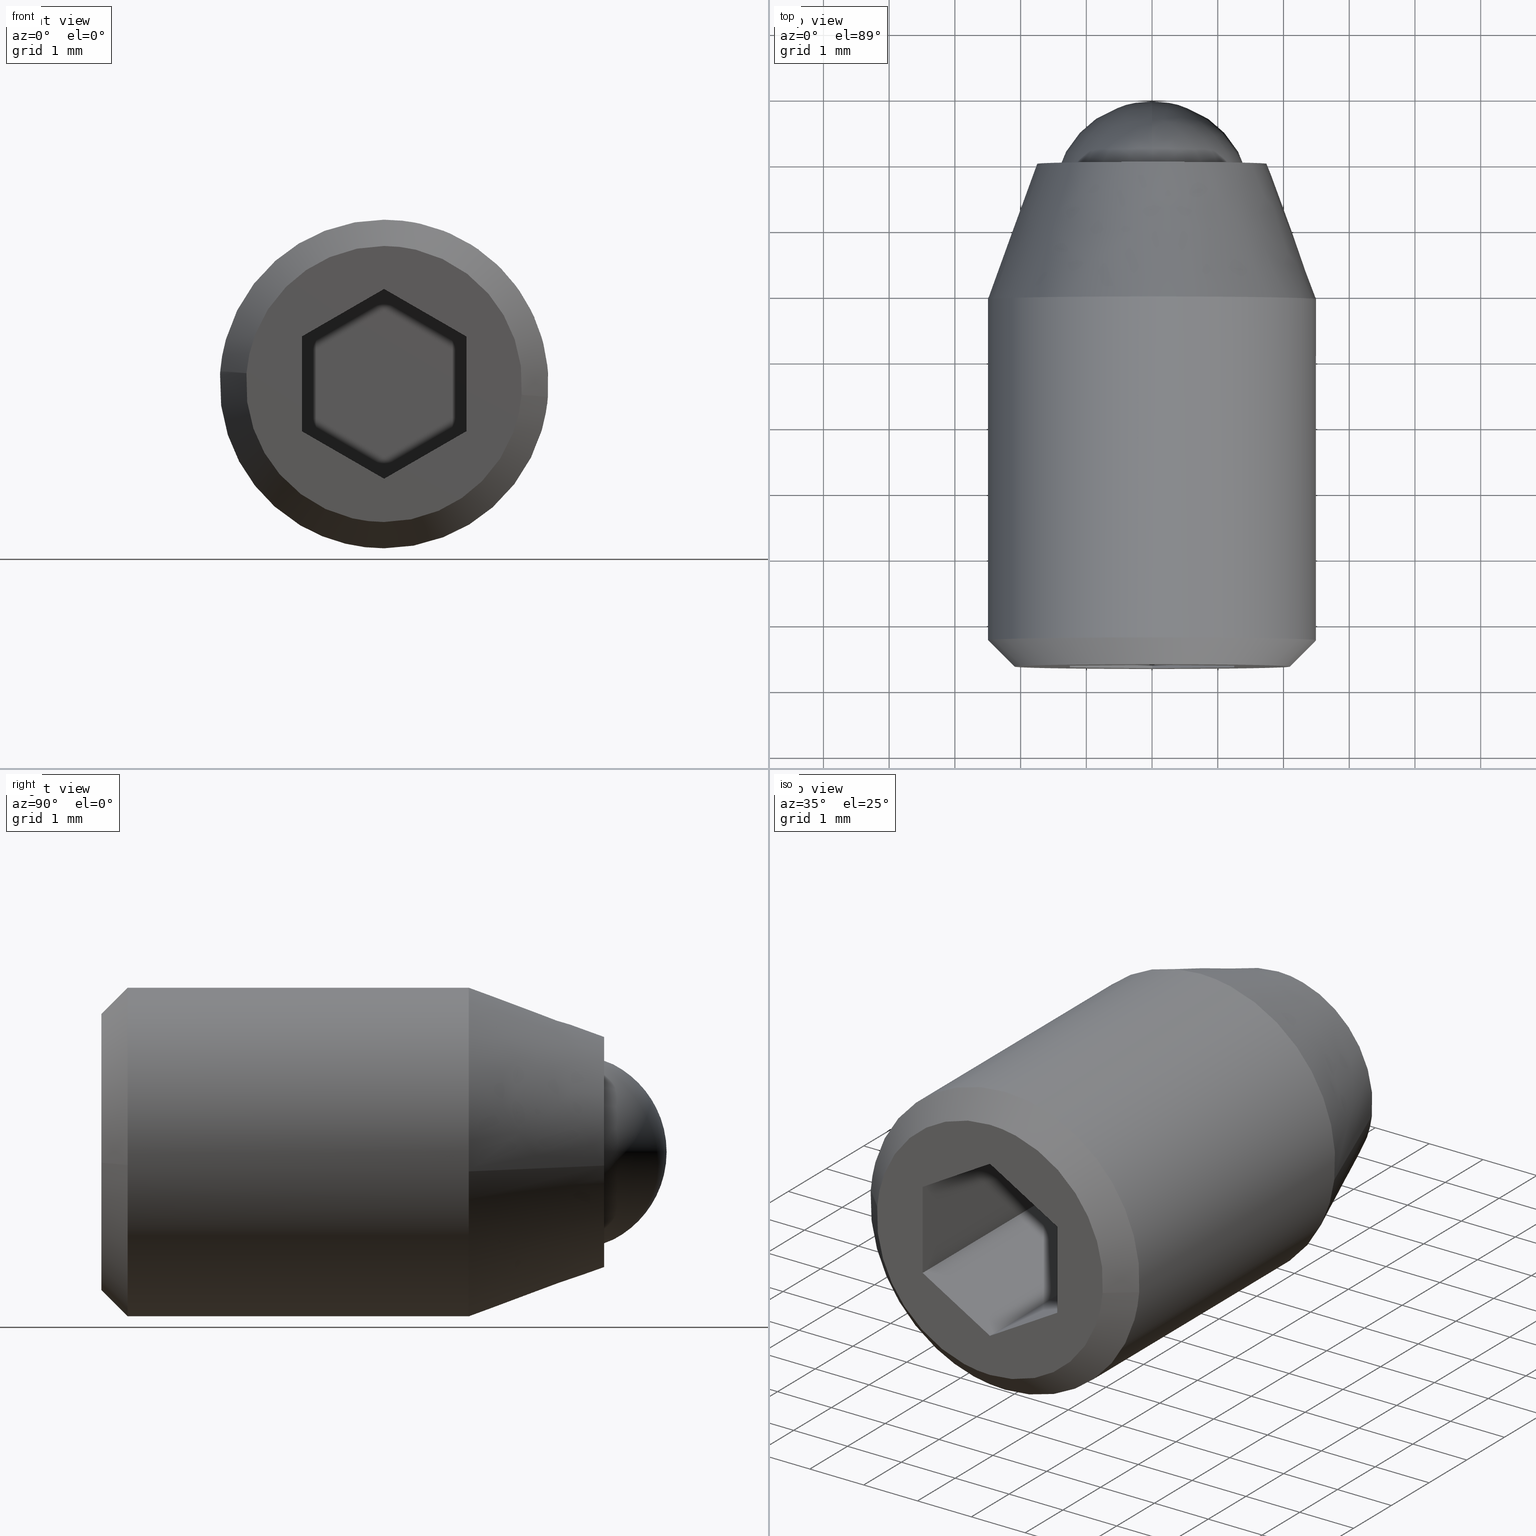
[diagram: canonical four-view strip — front | top / right | iso, engineering-drawing reading convention]
A machine part, canonical four-view strip (front | top / right | iso — engineering-drawing reading convention). The complete STEP part file that produces these views, byte-faithful:
ISO-10303-21;
HEADER;
/****************************************************************
 * Generated by software with PDE/Lib inside                    *
 * PDElib Version 4.4.1-0003, patched  Thursday August 19 11:58 *
 * International Technegroup Inc. (www.iti-oh.com)              *
 ****************************************************************/
FILE_DESCRIPTION((''),'2;1');
FILE_NAME('','2005-07-15T11:40:44',(''),(''),'','CADfix','');
FILE_SCHEMA(('AUTOMOTIVE_DESIGN'));
ENDSEC;
DATA;
#5=APPLICATION_CONTEXT('automotive design');
#6=APPLICATION_PROTOCOL_DEFINITION('Draft International Standard','automotive_design',1998,#5);
#7=PRODUCT_CONTEXT('None',#5,'mechanical');
#8=PRODUCT('body','','None',(#7));
#9=PRODUCT_RELATED_PRODUCT_CATEGORY('part','description',(#8));
#10=PRODUCT_DEFINITION_FORMATION('None','None',#8);
#11=PRODUCT_DEFINITION_CONTEXT('part definition',#5,'design');
#12=PRODUCT_DEFINITION('None','None',#10,#11);
#18=(NAMED_UNIT(*)PLANE_ANGLE_UNIT()SI_UNIT($,.RADIAN.));
#19=DIMENSIONAL_EXPONENTS(0.0,0.0,0.0,0.0,0.0,0.0,0.0);
#20=PLANE_ANGLE_MEASURE_WITH_UNIT(PLANE_ANGLE_MEASURE(0.017453292500000),#18);
#24=(CONVERSION_BASED_UNIT('DEGREE',#20)NAMED_UNIT(#19)PLANE_ANGLE_UNIT());
#28=(NAMED_UNIT(*)SI_UNIT($,.STERADIAN.)SOLID_ANGLE_UNIT());
#32=(LENGTH_UNIT()NAMED_UNIT(*)SI_UNIT(.MILLI.,.METRE.));
#34=UNCERTAINTY_MEASURE_WITH_UNIT(LENGTH_MEASURE(0.001000000000000),#32,'DISTANCE_ACCURACY_VALUE','');
#36=(GEOMETRIC_REPRESENTATION_CONTEXT(3)GLOBAL_UNCERTAINTY_ASSIGNED_CONTEXT((#34))GLOBAL_UNIT_ASSIGNED_CONTEXT((#24,#28,#32))REPRESENTATION_CONTEXT('None','None'));
#37=AXIS2_PLACEMENT_3D('',#38,#39,#40);
#38=CARTESIAN_POINT('',(0.0,0.0,0.0));
#39=DIRECTION('',(0.0,0.0,1.0));
#40=DIRECTION('',(1.0,0.0,0.0));
#41=ADVANCED_BREP_SHAPE_REPRESENTATION('',(#37,#953,#1164),#36);
#42=PRODUCT_DEFINITION_SHAPE('','',#12);
#43=SHAPE_DEFINITION_REPRESENTATION(#42,#41);
#44=CARTESIAN_POINT('',(-1.489514289545500,0.075000000000000,0.177051351985138));
#45=CARTESIAN_POINT('',(-1.494581423172908,0.075000000000000,0.134422092956966));
#46=CARTESIAN_POINT('',(-1.497202197632800,0.075000000000000,0.091572809302285));
#47=CARTESIAN_POINT('',(-1.588775006935085,0.075000000000000,-1.405629388330515));
#48=CARTESIAN_POINT('',(-0.091572809302285,0.075000000000000,-1.497202197632800));
#49=CARTESIAN_POINT('',(1.405629388330515,0.075000000000000,-1.588775006935085));
#50=CARTESIAN_POINT('',(1.497202197632800,0.075000000000000,-0.091572809302285));
#51=CARTESIAN_POINT('',(-1.489514289545500,-3.076875000000002,0.177051351985138));
#52=CARTESIAN_POINT('',(-1.494581423172908,-3.076875000000001,0.134422092956966));
#53=CARTESIAN_POINT('',(-1.497202197632800,-3.076875000000001,0.091572809302285));
#54=CARTESIAN_POINT('',(-1.588775006935085,-3.076875000000000,-1.405629388330515));
#55=CARTESIAN_POINT('',(-0.091572809302285,-3.076875000000001,-1.497202197632800));
#56=CARTESIAN_POINT('',(1.405629388330515,-3.076875000000000,-1.588775006935085));
#57=CARTESIAN_POINT('',(1.497202197632800,-3.076875000000001,-0.091572809302285));
#65=(BOUNDED_SURFACE()B_SPLINE_SURFACE(2,1,((#44,#51),(#45,#52),(#46,#53),(#47,#54),(#48,#55),(#49,#56),(#50,#57)),.UNSPECIFIED.,.F.,.F.,.U.)B_SPLINE_SURFACE_WITH_KNOTS((3,2,2,3),(2,2),(3.078760800517997,3.141592653589793,4.712388980384690,6.283185307179586),(0.0,3.151875000000001),.UNSPECIFIED.)GEOMETRIC_REPRESENTATION_ITEM()RATIONAL_B_SPLINE_SURFACE(((0.977505800795127,0.977505800795127),(0.988284271247462,0.988284271247462),(1.0,1.0),(0.707106781186548,0.707106781186548),(1.0,1.0),(0.707106781186548,0.707106781186548),(1.0,1.0)))REPRESENTATION_ITEM('')SURFACE());
#66=CARTESIAN_POINT('',(-1.489514571576380,-3.000000000000006,0.177048979256939));
#67=VERTEX_POINT('',#66);
#68=CARTESIAN_POINT('',(0.0,-3.0,-1.500000000000000));
#69=VERTEX_POINT('',#68);
#70=CARTESIAN_POINT('',(-1.489514571576379,-3.000000000000006,0.177048979256939));
#71=CARTESIAN_POINT('',(-1.500000000000000,-3.0,0.088834980571960));
#72=CARTESIAN_POINT('',(-1.500000000000000,-3.0,0.0));
#73=CARTESIAN_POINT('',(-1.500000000000000,-3.0,-1.500000000000000));
#74=CARTESIAN_POINT('',(0.0,-3.0,-1.500000000000000));
#82=(BOUNDED_CURVE()B_SPLINE_CURVE(2,(#70,#71,#72,#73,#74),.UNSPECIFIED.,.F.,.U.)B_SPLINE_CURVE_WITH_KNOTS((3,2,3),(0.229562742730122,0.250000000000000,0.500000000000000),.UNSPECIFIED.)CURVE()GEOMETRIC_REPRESENTATION_ITEM()RATIONAL_B_SPLINE_CURVE((0.956027281859960,0.976056263738028,1.0,0.707106781186548,1.0))REPRESENTATION_ITEM(''));
#83=EDGE_CURVE('',#67,#69,#82,.T.);
#84=ORIENTED_EDGE('',*,*,#83,.T.);
#85=CARTESIAN_POINT('',(1.497202266602667,-2.999999999999996,-0.091571681640985));
#86=VERTEX_POINT('',#85);
#87=CARTESIAN_POINT('',(0.0,-3.0,-1.500000000000000));
#88=CARTESIAN_POINT('',(1.411060165124999,-3.0,-1.500000000000000));
#89=CARTESIAN_POINT('',(1.497202266602667,-2.999999999999996,-0.091571681640985));
#97=(BOUNDED_CURVE()B_SPLINE_CURVE(2,(#87,#88,#89),.UNSPECIFIED.,.F.,.U.)B_SPLINE_CURVE_WITH_KNOTS((3,3),(0.500000000000000,0.739333092200605),.UNSPECIFIED.)CURVE()GEOMETRIC_REPRESENTATION_ITEM()RATIONAL_B_SPLINE_CURVE((1.0,0.719603841027152,0.976072320199457))REPRESENTATION_ITEM(''));
#98=EDGE_CURVE('',#69,#86,#97,.T.);
#99=ORIENTED_EDGE('',*,*,#98,.T.);
#100=CARTESIAN_POINT('',(1.497202265752766,-6.938894E-017,-0.091571695537096));
#101=VERTEX_POINT('',#100);
#102=CARTESIAN_POINT('',(1.497202265752766,-6.938894E-017,-0.091571695537096));
#103=CARTESIAN_POINT('',(1.497202266602667,-2.999999999999996,-0.091571681640985));
#104=QUASI_UNIFORM_CURVE('',1,(#102,#103),.UNSPECIFIED.,.F.,.U.);
#105=EDGE_CURVE('',#101,#86,#104,.T.);
#106=ORIENTED_EDGE('',*,*,#105,.F.);
#107=CARTESIAN_POINT('',(0.0,0.0,-1.500000000000000));
#108=VERTEX_POINT('',#107);
#109=CARTESIAN_POINT('',(0.0,0.0,-1.500000000000000));
#110=CARTESIAN_POINT('',(1.411060152003934,0.0,-1.500000000000000));
#111=CARTESIAN_POINT('',(1.497202265752766,-6.938894E-017,-0.091571695537096));
#119=(BOUNDED_CURVE()B_SPLINE_CURVE(2,(#109,#110,#111),.UNSPECIFIED.,.F.,.U.)B_SPLINE_CURVE_WITH_KNOTS((3,3),(0.500000000000000,0.739333090599131),.UNSPECIFIED.)CURVE()GEOMETRIC_REPRESENTATION_ITEM()RATIONAL_B_SPLINE_CURVE((1.0,0.719603842903395,0.976072316767190))REPRESENTATION_ITEM(''));
#120=EDGE_CURVE('',#108,#101,#119,.T.);
#121=ORIENTED_EDGE('',*,*,#120,.F.);
#122=CARTESIAN_POINT('',(-1.489514568095193,-6.388714E-017,0.177049008544585));
#123=VERTEX_POINT('',#122);
#124=CARTESIAN_POINT('',(-1.489514568095193,-6.388714E-017,0.177049008544585));
#125=CARTESIAN_POINT('',(-1.500000000000000,0.0,0.088834995370588));
#126=CARTESIAN_POINT('',(-1.500000000000000,0.0,0.0));
#127=CARTESIAN_POINT('',(-1.500000000000000,0.0,-1.500000000000000));
#128=CARTESIAN_POINT('',(0.0,0.0,-1.500000000000000));
#136=(BOUNDED_CURVE()B_SPLINE_CURVE(2,(#124,#125,#126,#127,#128),.UNSPECIFIED.,.F.,.U.)B_SPLINE_CURVE_WITH_KNOTS((3,2,3),(0.229562739407087,0.250000000000000,0.500000000000000),.UNSPECIFIED.)CURVE()GEOMETRIC_REPRESENTATION_ITEM()RATIONAL_B_SPLINE_CURVE((0.956027275346658,0.976056259844850,1.0,0.707106781186548,1.0))REPRESENTATION_ITEM(''));
#137=EDGE_CURVE('',#123,#108,#136,.T.);
#138=ORIENTED_EDGE('',*,*,#137,.F.);
#139=CARTESIAN_POINT('',(-1.489514568095193,-6.388714E-017,0.177049008544585));
#140=CARTESIAN_POINT('',(-1.489514571576380,-3.000000000000006,0.177048979256939));
#141=QUASI_UNIFORM_CURVE('',1,(#139,#140),.UNSPECIFIED.,.F.,.U.);
#142=EDGE_CURVE('',#123,#67,#141,.T.);
#143=ORIENTED_EDGE('',*,*,#142,.T.);
#144=EDGE_LOOP('',(#84,#99,#106,#121,#138,#143));
#145=FACE_OUTER_BOUND('',#144,.T.);
#146=ADVANCED_FACE('',(#145),#65,.F.);
#147=CARTESIAN_POINT('',(1.495940374393547,0.075000000000000,-0.112203436900459));
#148=CARTESIAN_POINT('',(1.496569480353087,0.075000000000000,-0.101917645382821));
#149=CARTESIAN_POINT('',(1.588775006935085,0.075000000000000,1.405629388330515));
#150=CARTESIAN_POINT('',(0.091572809302285,0.075000000000000,1.497202197632800));
#151=CARTESIAN_POINT('',(-1.322315236259252,0.075000000000000,1.583679295098791));
#152=CARTESIAN_POINT('',(-1.490766185100500,0.075000000000000,0.166519287150360));
#153=CARTESIAN_POINT('',(-1.492011352276531,0.075000000000000,0.156043827455902));
#154=CARTESIAN_POINT('',(1.495940374393547,-3.076875000000002,-0.112203436900459));
#155=CARTESIAN_POINT('',(1.496569480353087,-3.076875000000000,-0.101917645382821));
#156=CARTESIAN_POINT('',(1.588775006935085,-3.076875000000000,1.405629388330515));
#157=CARTESIAN_POINT('',(0.091572809302285,-3.076875000000001,1.497202197632800));
#158=CARTESIAN_POINT('',(-1.322315236259252,-3.076875000000001,1.583679295098791));
#159=CARTESIAN_POINT('',(-1.490766185100500,-3.076875000000001,0.166519287150360));
#160=CARTESIAN_POINT('',(-1.492011352276531,-3.076875000000001,0.156043827455902));
#168=(BOUNDED_SURFACE()B_SPLINE_SURFACE(2,1,((#147,#154),(#148,#155),(#149,#156),(#150,#157),(#151,#158),(#152,#159),(#153,#160)),.UNSPECIFIED.,.F.,.F.,.U.)B_SPLINE_SURFACE_WITH_KNOTS((3,1,2,1,3),(2,2),(0.0,0.024354456773587,2.509635831012156,4.895505950281183,4.919864450772479),(0.0,3.151875000000001),.UNSPECIFIED.)GEOMETRIC_REPRESENTATION_ITEM()RATIONAL_B_SPLINE_SURFACE(((1.005740400512239,1.005740400512239),(1.002870200256120,1.002870200256120),(0.707106781186548,0.707106781186548),(1.0,1.0),(0.718822509939086,0.718822509939086),(0.980146823462923,0.980146823462923),(0.982787846130719,0.982787846130719)))REPRESENTATION_ITEM('')SURFACE());
#169=CARTESIAN_POINT('',(0.0,-3.0,1.500000000000000));
#170=VERTEX_POINT('',#169);
#171=CARTESIAN_POINT('',(0.0,-3.0,1.500000000000000));
#172=CARTESIAN_POINT('',(-1.332263926100154,-3.0,1.500000000000000));
#173=CARTESIAN_POINT('',(-1.489514571576379,-3.000000000000006,0.177048979256939));
#181=(BOUNDED_CURVE()B_SPLINE_CURVE(2,(#171,#172,#173),.UNSPECIFIED.,.F.,.U.)B_SPLINE_CURVE_WITH_KNOTS((3,3),(0.0,0.229562742730122),.UNSPECIFIED.)CURVE()GEOMETRIC_REPRESENTATION_ITEM()RATIONAL_B_SPLINE_CURVE((1.0,0.731050517448520,0.956027281859960))REPRESENTATION_ITEM(''));
#182=EDGE_CURVE('',#170,#67,#181,.T.);
#183=ORIENTED_EDGE('',*,*,#182,.T.);
#184=ORIENTED_EDGE('',*,*,#142,.F.);
#185=CARTESIAN_POINT('',(0.0,0.0,1.500000000000000));
#186=VERTEX_POINT('',#185);
#187=CARTESIAN_POINT('',(0.0,0.0,1.500000000000000));
#188=CARTESIAN_POINT('',(-1.332263899720056,0.0,1.500000000000001));
#189=CARTESIAN_POINT('',(-1.489514568095193,-6.388714E-017,0.177049008544585));
#197=(BOUNDED_CURVE()B_SPLINE_CURVE(2,(#187,#188,#189),.UNSPECIFIED.,.F.,.U.)B_SPLINE_CURVE_WITH_KNOTS((3,3),(0.0,0.229562739407087),.UNSPECIFIED.)CURVE()GEOMETRIC_REPRESENTATION_ITEM()RATIONAL_B_SPLINE_CURVE((1.0,0.731050521341698,0.956027275346658))REPRESENTATION_ITEM(''));
#198=EDGE_CURVE('',#186,#123,#197,.T.);
#199=ORIENTED_EDGE('',*,*,#198,.F.);
#200=CARTESIAN_POINT('',(1.497202265752766,-6.938894E-017,-0.091571695537096));
#201=CARTESIAN_POINT('',(1.500000000000000,0.0,-0.045828586503876));
#202=CARTESIAN_POINT('',(1.500000000000000,0.0,0.0));
#203=CARTESIAN_POINT('',(1.500000000000000,0.0,1.500000000000000));
#204=CARTESIAN_POINT('',(0.0,0.0,1.500000000000000));
#212=(BOUNDED_CURVE()B_SPLINE_CURVE(2,(#200,#201,#202,#203,#204),.UNSPECIFIED.,.F.,.U.)B_SPLINE_CURVE_WITH_KNOTS((3,2,3),(0.739333090599131,0.750000000000000,1.0),.UNSPECIFIED.)CURVE()GEOMETRIC_REPRESENTATION_ITEM()RATIONAL_B_SPLINE_CURVE((0.976072316767190,0.987502938283152,1.0,0.707106781186548,1.0))REPRESENTATION_ITEM(''));
#213=EDGE_CURVE('',#101,#186,#212,.T.);
#214=ORIENTED_EDGE('',*,*,#213,.F.);
#215=ORIENTED_EDGE('',*,*,#105,.T.);
#216=CARTESIAN_POINT('',(1.497202266602667,-2.999999999999996,-0.091571681640985));
#217=CARTESIAN_POINT('',(1.500000000000000,-3.0,-0.045828579536340));
#218=CARTESIAN_POINT('',(1.500000000000000,-3.0,0.0));
#219=CARTESIAN_POINT('',(1.500000000000000,-3.0,1.500000000000000));
#220=CARTESIAN_POINT('',(0.0,-3.0,1.500000000000000));
#228=(BOUNDED_CURVE()B_SPLINE_CURVE(2,(#216,#217,#218,#219,#220),.UNSPECIFIED.,.F.,.U.)B_SPLINE_CURVE_WITH_KNOTS((3,2,3),(0.739333092200605,0.750000000000000,1.0),.UNSPECIFIED.)CURVE()GEOMETRIC_REPRESENTATION_ITEM()RATIONAL_B_SPLINE_CURVE((0.976072320199457,0.987502940159395,1.0,0.707106781186548,1.0))REPRESENTATION_ITEM(''));
#229=EDGE_CURVE('',#86,#170,#228,.T.);
#230=ORIENTED_EDGE('',*,*,#229,.T.);
#231=EDGE_LOOP('',(#183,#184,#199,#214,#215,#230));
#232=FACE_OUTER_BOUND('',#231,.T.);
#233=ADVANCED_FACE('',(#232),#168,.F.);
#234=CARTESIAN_POINT('',(-0.585809034962533,-1.930873199999999,-2.430396629062068));
#235=CARTESIAN_POINT('',(-0.372070742915651,-1.930873199999999,-2.481914896122389));
#236=CARTESIAN_POINT('',(-0.152621348837143,-1.930873199999999,-2.495336996054667));
#237=CARTESIAN_POINT('',(2.342715647217524,-1.930873199999999,-2.647958344891810));
#238=CARTESIAN_POINT('',(2.495336996054667,-1.930873199999999,-0.152621348837143));
#239=CARTESIAN_POINT('',(2.647958344891809,-1.930873199999999,2.342715647217524));
#240=CARTESIAN_POINT('',(0.152621348837143,-1.930873199999999,2.495336996054666));
#241=CARTESIAN_POINT('',(-2.342715647217524,-1.930873199999999,2.647958344891809));
#242=CARTESIAN_POINT('',(-2.495336996054667,-1.930873199999999,0.152621348837142));
#243=CARTESIAN_POINT('',(-0.585809034962533,-7.382978170000000,-2.430396629062068));
#244=CARTESIAN_POINT('',(-0.372070742915651,-7.382978170000002,-2.481914896122389));
#245=CARTESIAN_POINT('',(-0.152621348837143,-7.382978170000001,-2.495336996054667));
#246=CARTESIAN_POINT('',(2.342715647217524,-7.382978170000001,-2.647958344891810));
#247=CARTESIAN_POINT('',(2.495336996054667,-7.382978170000001,-0.152621348837143));
#248=CARTESIAN_POINT('',(2.647958344891809,-7.382978170000001,2.342715647217524));
#249=CARTESIAN_POINT('',(0.152621348837143,-7.382978170000001,2.495336996054666));
#250=CARTESIAN_POINT('',(-2.342715647217524,-7.382978170000001,2.647958344891809));
#251=CARTESIAN_POINT('',(-2.495336996054667,-7.382978170000001,0.152621348837142));
#259=(BOUNDED_SURFACE()B_SPLINE_SURFACE(2,1,((#234,#243),(#235,#244),(#236,#245),(#237,#246),(#238,#247),(#239,#248),(#240,#249),(#241,#250),(#242,#251)),.UNSPECIFIED.,.F.,.F.,.U.)B_SPLINE_SURFACE_WITH_KNOTS((3,2,2,2,3),(2,2),(0.0,0.497056274847714,4.639191898578664,8.781327522309613,12.923463146040559),(0.0,5.452104970000002),.UNSPECIFIED.)GEOMETRIC_REPRESENTATION_ITEM()RATIONAL_B_SPLINE_SURFACE(((0.938140952186599,0.938140952186599),(0.964852813742386,0.964852813742386),(1.0,1.0),(0.707106781186548,0.707106781186548),(1.0,1.0),(0.707106781186548,0.707106781186548),(1.0,1.0),(0.707106781186548,0.707106781186548),(1.0,1.0)))REPRESENTATION_ITEM('')SURFACE());
#260=CARTESIAN_POINT('',(-0.585806948981931,-7.249999999999998,-2.430397131853122));
#261=VERTEX_POINT('',#260);
#262=CARTESIAN_POINT('',(0.0,-7.250000000000000,-2.500000000000000));
#263=VERTEX_POINT('',#262);
#264=CARTESIAN_POINT('',(-0.585806948981931,-7.249999999999999,-2.430397131853122));
#265=CARTESIAN_POINT('',(-0.297038419682970,-7.250000000000001,-2.500000000000001));
#266=CARTESIAN_POINT('',(0.0,-7.250000000000000,-2.500000000000000));
#274=(BOUNDED_CURVE()B_SPLINE_CURVE(2,(#264,#265,#266),.UNSPECIFIED.,.F.,.U.)B_SPLINE_CURVE_WITH_KNOTS((3,3),(0.959962849657273,1.0),.UNSPECIFIED.)CURVE()GEOMETRIC_REPRESENTATION_ITEM()RATIONAL_B_SPLINE_CURVE((0.921211122624466,0.953093560656002,1.0))REPRESENTATION_ITEM(''));
#275=EDGE_CURVE('',#261,#263,#274,.T.);
#276=ORIENTED_EDGE('',*,*,#275,.F.);
#277=CARTESIAN_POINT('',(-0.585806974713180,-2.060608000000000,-2.430397125651053));
#278=VERTEX_POINT('',#277);
#279=CARTESIAN_POINT('',(-0.585806974713180,-2.060608000000000,-2.430397125651053));
#280=CARTESIAN_POINT('',(-0.585806948981931,-7.249999999999998,-2.430397131853122));
#281=QUASI_UNIFORM_CURVE('',1,(#279,#280),.UNSPECIFIED.,.F.,.U.);
#282=EDGE_CURVE('',#278,#261,#281,.T.);
#283=ORIENTED_EDGE('',*,*,#282,.F.);
#284=CARTESIAN_POINT('',(0.0,-2.060608000000000,-2.500000000000000));
#285=VERTEX_POINT('',#284);
#286=CARTESIAN_POINT('',(-0.585806974713180,-2.060608000000000,-2.430397125651053));
#287=CARTESIAN_POINT('',(-0.297038433103870,-2.060607999999999,-2.500000000000001));
#288=CARTESIAN_POINT('',(0.0,-2.060608000000000,-2.500000000000000));
#296=(BOUNDED_CURVE()B_SPLINE_CURVE(2,(#286,#287,#288),.UNSPECIFIED.,.F.,.U.)B_SPLINE_CURVE_WITH_KNOTS((3,3),(0.959962847933152,1.0),.UNSPECIFIED.)CURVE()GEOMETRIC_REPRESENTATION_ITEM()RATIONAL_B_SPLINE_CURVE((0.921211119878558,0.953093558636069,1.0))REPRESENTATION_ITEM(''));
#297=EDGE_CURVE('',#278,#285,#296,.T.);
#298=ORIENTED_EDGE('',*,*,#297,.T.);
#299=CARTESIAN_POINT('',(2.482523263127480,-2.060605639161005,-0.295082957233039));
#300=VERTEX_POINT('',#299);
#301=CARTESIAN_POINT('',(0.0,-2.060608000000000,-2.500000000000000));
#302=CARTESIAN_POINT('',(2.220438165260473,-2.060606819580503,-2.499999949288416));
#303=CARTESIAN_POINT('',(2.482523263127480,-2.060605639161005,-0.295082957233039));
#311=(BOUNDED_CURVE()B_SPLINE_CURVE(2,(#301,#302,#303),.UNSPECIFIED.,.F.,.U.)B_SPLINE_CURVE_WITH_KNOTS((3,3),(0.0,0.229562645613831),.UNSPECIFIED.)CURVE()GEOMETRIC_REPRESENTATION_ITEM()RATIONAL_B_SPLINE_CURVE((1.0,0.731050631227333,0.956027091507652))REPRESENTATION_ITEM(''));
#312=EDGE_CURVE('',#285,#300,#311,.T.);
#313=ORIENTED_EDGE('',*,*,#312,.T.);
#314=CARTESIAN_POINT('',(0.0,-2.060608000000000,2.500000000000000));
#315=VERTEX_POINT('',#314);
#316=CARTESIAN_POINT('',(2.482523263127480,-2.060605639161005,-0.295082957233039));
#317=CARTESIAN_POINT('',(2.499999169171603,-2.060605701252197,-0.148058923018585));
#318=CARTESIAN_POINT('',(2.499999194438462,-2.060605771160900,0.000000095752367));
#319=CARTESIAN_POINT('',(2.499999621073361,-2.060606951580398,2.500000045040783));
#320=CARTESIAN_POINT('',(0.0,-2.060608000000000,2.500000000000000));
#328=(BOUNDED_CURVE()B_SPLINE_CURVE(2,(#316,#317,#318,#319,#320),.UNSPECIFIED.,.F.,.U.)B_SPLINE_CURVE_WITH_KNOTS((3,2,3),(0.229562645613831,0.250000000000000,0.500000000000000),.UNSPECIFIED.)CURVE()GEOMETRIC_REPRESENTATION_ITEM()RATIONAL_B_SPLINE_CURVE((0.956027091507652,0.976056149959215,1.0,0.707106781186548,1.0))REPRESENTATION_ITEM(''));
#329=EDGE_CURVE('',#300,#315,#328,.T.);
#330=ORIENTED_EDGE('',*,*,#329,.T.);
#331=CARTESIAN_POINT('',(-2.495336816990169,-2.060606771226499,0.152620613390287));
#332=VERTEX_POINT('',#331);
#333=CARTESIAN_POINT('',(0.0,-2.060608000000000,2.500000000000000));
#334=CARTESIAN_POINT('',(-2.351765737195421,-2.060607385613249,2.499999993173940));
#335=CARTESIAN_POINT('',(-2.495336816990170,-2.060606771226500,0.152620613390287));
#343=(BOUNDED_CURVE()B_SPLINE_CURVE(2,(#333,#334,#335),.UNSPECIFIED.,.F.,.U.)B_SPLINE_CURVE_WITH_KNOTS((3,3),(0.500000000000000,0.739333012152409),.UNSPECIFIED.)CURVE()GEOMETRIC_REPRESENTATION_ITEM()RATIONAL_B_SPLINE_CURVE((1.0,0.719603934809447,0.976072148640801))REPRESENTATION_ITEM(''));
#344=EDGE_CURVE('',#315,#332,#343,.T.);
#345=ORIENTED_EDGE('',*,*,#344,.T.);
#346=CARTESIAN_POINT('',(-2.495337008641150,-7.250000000000000,0.152621143049690));
#347=VERTEX_POINT('',#346);
#348=CARTESIAN_POINT('',(-2.495336816990169,-2.060606771226499,0.152620613390287));
#349=CARTESIAN_POINT('',(-2.495337008641150,-7.250000000000000,0.152621143049690));
#350=QUASI_UNIFORM_CURVE('',1,(#348,#349),.UNSPECIFIED.,.F.,.U.);
#351=EDGE_CURVE('',#332,#347,#350,.T.);
#352=ORIENTED_EDGE('',*,*,#351,.T.);
#353=CARTESIAN_POINT('',(-2.492293334333160,-7.249999999999146,0.196147739326167));
#354=VERTEX_POINT('',#353);
#355=CARTESIAN_POINT('',(-2.492293334333161,-7.249999999999146,0.196147739326167));
#356=CARTESIAN_POINT('',(-2.494005105898221,-7.250000000000002,0.174397619349500));
#357=CARTESIAN_POINT('',(-2.495337008641150,-7.250000000000000,0.152621143049690));
#365=(BOUNDED_CURVE()B_SPLINE_CURVE(2,(#355,#356,#357),.UNSPECIFIED.,.F.,.U.)B_SPLINE_CURVE_WITH_KNOTS((3,3),(0.736331300631874,0.739332990701423),.UNSPECIFIED.)CURVE()GEOMETRIC_REPRESENTATION_ITEM()RATIONAL_B_SPLINE_CURVE((0.969723356169953,0.972855505260749,0.976072102667238))REPRESENTATION_ITEM(''));
#366=EDGE_CURVE('',#354,#347,#365,.T.);
#367=ORIENTED_EDGE('',*,*,#366,.F.);
#368=CARTESIAN_POINT('',(0.0,-7.250000000000000,2.500000000000000));
#369=VERTEX_POINT('',#368);
#370=CARTESIAN_POINT('',(0.0,-7.250000000000000,2.500000000000000));
#371=CARTESIAN_POINT('',(-2.310976229133436,-7.250000000000001,2.500000000000000));
#372=CARTESIAN_POINT('',(-2.492293334333160,-7.249999999999146,0.196147739326167));
#380=(BOUNDED_CURVE()B_SPLINE_CURVE(2,(#370,#371,#372),.UNSPECIFIED.,.F.,.U.)B_SPLINE_CURVE_WITH_KNOTS((3,3),(0.500000000000000,0.736331300631873),.UNSPECIFIED.)CURVE()GEOMETRIC_REPRESENTATION_ITEM()RATIONAL_B_SPLINE_CURVE((1.0,0.723120658606244,0.969723356169951))REPRESENTATION_ITEM(''));
#381=EDGE_CURVE('',#369,#354,#380,.T.);
#382=ORIENTED_EDGE('',*,*,#381,.F.);
#383=CARTESIAN_POINT('',(2.492293334333160,-7.249999999999146,-0.196147739326167));
#384=VERTEX_POINT('',#383);
#385=CARTESIAN_POINT('',(2.492293334333161,-7.249999999999146,-0.196147739326167));
#386=CARTESIAN_POINT('',(2.500000000000000,-7.250000000000000,-0.098225267525691));
#387=CARTESIAN_POINT('',(2.500000000000000,-7.250000000000000,-5.143347E-016));
#388=CARTESIAN_POINT('',(2.500000000000000,-7.250000000000000,2.500000000000000));
#389=CARTESIAN_POINT('',(0.0,-7.250000000000000,2.500000000000000));
#397=(BOUNDED_CURVE()B_SPLINE_CURVE(2,(#385,#386,#387,#388,#389),.UNSPECIFIED.,.F.,.U.)B_SPLINE_CURVE_WITH_KNOTS((3,2,3),(0.236331300631875,0.250000000000000,0.500000000000000),.UNSPECIFIED.)CURVE()GEOMETRIC_REPRESENTATION_ITEM()RATIONAL_B_SPLINE_CURVE((0.969723356169953,0.983986122580305,1.0,0.707106781186548,1.0))REPRESENTATION_ITEM(''));
#398=EDGE_CURVE('',#384,#369,#397,.T.);
#399=ORIENTED_EDGE('',*,*,#398,.F.);
#400=CARTESIAN_POINT('',(0.0,-7.250000000000000,-2.500000000000000));
#401=CARTESIAN_POINT('',(2.310976229133451,-7.250000000000001,-2.500000000000000));
#402=CARTESIAN_POINT('',(2.492293334333161,-7.249999999999146,-0.196147739326167));
#410=(BOUNDED_CURVE()B_SPLINE_CURVE(2,(#400,#401,#402),.UNSPECIFIED.,.F.,.U.)B_SPLINE_CURVE_WITH_KNOTS((3,3),(0.0,0.236331300631875),.UNSPECIFIED.)CURVE()GEOMETRIC_REPRESENTATION_ITEM()RATIONAL_B_SPLINE_CURVE((1.0,0.723120658606242,0.969723356169953))REPRESENTATION_ITEM(''));
#411=EDGE_CURVE('',#263,#384,#410,.T.);
#412=ORIENTED_EDGE('',*,*,#411,.F.);
#413=EDGE_LOOP('',(#276,#283,#298,#313,#330,#345,#352,#367,#382,#399,#412));
#414=FACE_OUTER_BOUND('',#413,.T.);
#415=ADVANCED_FACE('',(#414),#259,.T.);
#416=CARTESIAN_POINT('',(-2.494389757152267,-1.930873200000000,0.168108567992735));
#417=CARTESIAN_POINT('',(-2.494862767029109,-1.930873199999999,0.160374924867578));
#418=CARTESIAN_POINT('',(-2.623284092326316,-1.930873199999999,-1.939295183790920));
#419=CARTESIAN_POINT('',(-0.577756178803476,-1.930873199999998,-2.432337643890191));
#420=CARTESIAN_POINT('',(-0.569720104418544,-1.930873199999999,-2.434274613734550));
#421=CARTESIAN_POINT('',(-2.494389757152267,-7.382978170000005,0.168108567992735));
#422=CARTESIAN_POINT('',(-2.494862767029109,-7.382978170000000,0.160374924867578));
#423=CARTESIAN_POINT('',(-2.623284092326316,-7.382978170000000,-1.939295183790920));
#424=CARTESIAN_POINT('',(-0.577756178803476,-7.382978170000000,-2.432337643890191));
#425=CARTESIAN_POINT('',(-0.569720104418544,-7.382978170000001,-2.434274613734550));
#433=(BOUNDED_SURFACE()B_SPLINE_SURFACE(2,1,((#416,#421),(#417,#422),(#418,#423),(#419,#424),(#420,#425)),.UNSPECIFIED.,.F.,.F.,.U.)B_SPLINE_SURFACE_WITH_KNOTS((3,1,1,3),(2,2),(0.0,0.018180248355847,3.654276079242870,3.672458921098393),(0.0,5.452104970000003),.UNSPECIFIED.)GEOMETRIC_REPRESENTATION_ITEM()RATIONAL_B_SPLINE_SURFACE(((1.002577427605067,1.002577427605067),(1.001288713802534,1.001288713802534),(0.742253967444162,0.742253967444162),(0.939120514395843,0.939120514395843),(0.940100076605087,0.940100076605087)))REPRESENTATION_ITEM('')SURFACE());
#434=CARTESIAN_POINT('',(-2.495337008641149,-7.250000000000000,0.152621143049690));
#435=CARTESIAN_POINT('',(-2.500000000000001,-7.250000000000000,0.076381701882014));
#436=CARTESIAN_POINT('',(-2.500000000000000,-7.250000000000000,-5.143347E-016));
#437=CARTESIAN_POINT('',(-2.500000000000000,-7.250000000000000,-1.969012621362852));
#438=CARTESIAN_POINT('',(-0.585806948981931,-7.249999999999999,-2.430397131853122));
#446=(BOUNDED_CURVE()B_SPLINE_CURVE(2,(#434,#435,#436,#437,#438),.UNSPECIFIED.,.F.,.U.)B_SPLINE_CURVE_WITH_KNOTS((3,2,3),(0.739332990701423,0.750000000000000,0.959962849657273),.UNSPECIFIED.)CURVE()GEOMETRIC_REPRESENTATION_ITEM()RATIONAL_B_SPLINE_CURVE((0.976072102667238,0.987502821245707,1.0,0.754013220530545,0.921211122624466))REPRESENTATION_ITEM(''));
#447=EDGE_CURVE('',#347,#261,#446,.T.);
#448=ORIENTED_EDGE('',*,*,#447,.F.);
#449=ORIENTED_EDGE('',*,*,#351,.F.);
#450=CARTESIAN_POINT('',(-2.495336816990170,-2.060606771226500,0.152620613390287));
#451=CARTESIAN_POINT('',(-2.499999780856167,-2.060606793617572,0.076381532933857));
#452=CARTESIAN_POINT('',(-2.499999785124162,-2.060606817112824,-0.000000013142274));
#453=CARTESIAN_POINT('',(-2.499999895147295,-2.060607422788553,-1.969012606331962));
#454=CARTESIAN_POINT('',(-0.585806974713180,-2.060608000000000,-2.430397125651053));
#462=(BOUNDED_CURVE()B_SPLINE_CURVE(2,(#450,#451,#452,#453,#454),.UNSPECIFIED.,.F.,.U.)B_SPLINE_CURVE_WITH_KNOTS((3,2,3),(0.739333012152409,0.750000000000000,0.959962847933152),.UNSPECIFIED.)CURVE()GEOMETRIC_REPRESENTATION_ITEM()RATIONAL_B_SPLINE_CURVE((0.976072148640801,0.987502846377101,1.0,0.754013222550478,0.921211119878558))REPRESENTATION_ITEM(''));
#463=EDGE_CURVE('',#332,#278,#462,.T.);
#464=ORIENTED_EDGE('',*,*,#463,.T.);
#465=ORIENTED_EDGE('',*,*,#282,.T.);
#466=EDGE_LOOP('',(#448,#449,#464,#465));
#467=FACE_OUTER_BOUND('',#466,.T.);
#468=ADVANCED_FACE('',(#467),#433,.T.);
#469=CARTESIAN_POINT('',(1.719147742517098,0.051515200000000,-0.204346768749514));
#470=CARTESIAN_POINT('',(1.724996059245398,0.051515200000000,-0.155145498954499));
#471=CARTESIAN_POINT('',(1.728020869767857,0.051515200000000,-0.105690284069722));
#472=CARTESIAN_POINT('',(1.833711153837578,0.051515200000000,1.622330585698135));
#473=CARTESIAN_POINT('',(0.105690284069721,0.051515200000000,1.728020869767856));
#474=CARTESIAN_POINT('',(-1.622330585698135,0.051515200000000,1.833711153837578));
#475=CARTESIAN_POINT('',(-1.728020869767857,0.051515200000000,0.105690284069721));
#476=CARTESIAN_POINT('',(2.501608217743967,-2.113411080000001,-0.297354057089206));
#477=CARTESIAN_POINT('',(2.510118363105916,-2.113411080000000,-0.225759104660956));
#478=CARTESIAN_POINT('',(2.514519899211837,-2.113411080000000,-0.153794625456328));
#479=CARTESIAN_POINT('',(2.668314524668165,-2.113411080000000,2.360725273755509));
#480=CARTESIAN_POINT('',(0.153794625456328,-2.113411080000000,2.514519899211836));
#481=CARTESIAN_POINT('',(-2.360725273755509,-2.113411080000000,2.668314524668164));
#482=CARTESIAN_POINT('',(-2.514519899211837,-2.113411080000000,0.153794625456327));
#490=(BOUNDED_SURFACE()B_SPLINE_SURFACE(2,1,((#469,#476),(#470,#477),(#471,#478),(#472,#479),(#473,#480),(#474,#481),(#475,#482)),.UNSPECIFIED.,.F.,.F.,.U.)B_SPLINE_SURFACE_WITH_KNOTS((3,2,2,3),(2,2),(0.0,0.166959131653535,4.340937422991916,8.514915714330297),(0.0,2.303866434672636),.UNSPECIFIED.)GEOMETRIC_REPRESENTATION_ITEM()RATIONAL_B_SPLINE_SURFACE(((0.977505800795127,0.977505800795127),(0.988284271247462,0.988284271247462),(1.0,1.0),(0.707106781186548,0.707106781186548),(1.0,1.0),(0.707106781186548,0.707106781186548),(1.0,1.0)))REPRESENTATION_ITEM('')SURFACE());
#491=ORIENTED_EDGE('',*,*,#329,.F.);
#492=CARTESIAN_POINT('',(1.737766671136094,-1.200028E-012,-0.206559910655735));
#493=VERTEX_POINT('',#492);
#494=CARTESIAN_POINT('',(1.737766671136094,-1.200028E-012,-0.206559910655735));
#495=CARTESIAN_POINT('',(2.482523263127480,-2.060605639161005,-0.295082957233039));
#496=QUASI_UNIFORM_CURVE('',1,(#494,#495),.UNSPECIFIED.,.F.,.U.);
#497=EDGE_CURVE('',#493,#300,#496,.T.);
#498=ORIENTED_EDGE('',*,*,#497,.F.);
#499=CARTESIAN_POINT('',(0.0,0.0,1.750000000000000));
#500=VERTEX_POINT('',#499);
#501=CARTESIAN_POINT('',(1.737766671136094,-1.200028E-012,-0.206559910655735));
#502=CARTESIAN_POINT('',(1.750000000000000,0.0,-0.103642209397266));
#503=CARTESIAN_POINT('',(1.750000000000000,0.0,-5.143347E-016));
#504=CARTESIAN_POINT('',(1.750000000000000,0.0,1.750000000000000));
#505=CARTESIAN_POINT('',(0.0,0.0,1.750000000000000));
#513=(BOUNDED_CURVE()B_SPLINE_CURVE(2,(#501,#502,#503,#504,#505),.UNSPECIFIED.,.F.,.U.)B_SPLINE_CURVE_WITH_KNOTS((3,2,3),(0.229562473514408,0.250000000000000,0.500000000000000),.UNSPECIFIED.)CURVE()GEOMETRIC_REPRESENTATION_ITEM()RATIONAL_B_SPLINE_CURVE((0.956026754185463,0.976055948332199,1.0,0.707106781186547,1.0))REPRESENTATION_ITEM(''));
#514=EDGE_CURVE('',#493,#500,#513,.T.);
#515=ORIENTED_EDGE('',*,*,#514,.T.);
#516=CARTESIAN_POINT('',(-1.746735897238305,-1.256870E-012,0.106834944192873));
#517=VERTEX_POINT('',#516);
#518=CARTESIAN_POINT('',(0.0,0.0,1.750000000000000));
#519=CARTESIAN_POINT('',(-1.646235617072029,0.0,1.749999999999999));
#520=CARTESIAN_POINT('',(-1.746735897238305,-1.256870E-012,0.106834944192873));
#528=(BOUNDED_CURVE()B_SPLINE_CURVE(2,(#518,#519,#520),.UNSPECIFIED.,.F.,.U.)B_SPLINE_CURVE_WITH_KNOTS((3,3),(0.500000000000000,0.739332962240615),.UNSPECIFIED.)CURVE()GEOMETRIC_REPRESENTATION_ITEM()RATIONAL_B_SPLINE_CURVE((1.0,0.719603993284751,0.976072041670301))REPRESENTATION_ITEM(''));
#529=EDGE_CURVE('',#500,#517,#528,.T.);
#530=ORIENTED_EDGE('',*,*,#529,.T.);
#531=CARTESIAN_POINT('',(-1.746735897238305,-1.256870E-012,0.106834944192873));
#532=CARTESIAN_POINT('',(-2.495336816990169,-2.060606771226499,0.152620613390287));
#533=QUASI_UNIFORM_CURVE('',1,(#531,#532),.UNSPECIFIED.,.F.,.U.);
#534=EDGE_CURVE('',#517,#332,#533,.T.);
#535=ORIENTED_EDGE('',*,*,#534,.T.);
#536=ORIENTED_EDGE('',*,*,#344,.F.);
#537=EDGE_LOOP('',(#491,#498,#515,#530,#535,#536));
#538=FACE_OUTER_BOUND('',#537,.T.);
#539=ADVANCED_FACE('',(#538),#490,.T.);
#540=CARTESIAN_POINT('',(-1.728020869767857,0.051515200000000,0.105690284069721));
#541=CARTESIAN_POINT('',(-1.833711153837578,0.051515200000000,-1.622330585698135));
#542=CARTESIAN_POINT('',(-0.105690284069721,0.051515200000000,-1.728020869767857));
#543=CARTESIAN_POINT('',(1.526172168515887,0.051515200000000,-1.827829853093189));
#544=CARTESIAN_POINT('',(1.719147742517098,0.051515200000000,-0.204346768749514));
#545=CARTESIAN_POINT('',(-2.514519899211837,-2.113411080000000,0.153794625456327));
#546=CARTESIAN_POINT('',(-2.668314524668165,-2.113411080000000,-2.360725273755509));
#547=CARTESIAN_POINT('',(-0.153794625456328,-2.113411080000000,-2.514519899211837));
#548=CARTESIAN_POINT('',(2.220800891063323,-2.113411080000000,-2.659756382799773));
#549=CARTESIAN_POINT('',(2.501608217743967,-2.113411080000001,-0.297354057089206));
#557=(BOUNDED_SURFACE()B_SPLINE_SURFACE(2,1,((#540,#545),(#541,#546),(#542,#547),(#543,#548),(#544,#549)),.UNSPECIFIED.,.F.,.F.,.U.)B_SPLINE_SURFACE_WITH_KNOTS((3,2,3),(2,2),(0.0,4.173978291338380,8.180997451023224),(0.0,2.303866434672635),.UNSPECIFIED.)GEOMETRIC_REPRESENTATION_ITEM()RATIONAL_B_SPLINE_SURFACE(((1.0,1.0),(0.707106781186548,0.707106781186548),(1.0,1.0),(0.718822509939086,0.718822509939086),(0.977505800795127,0.977505800795127)))REPRESENTATION_ITEM('')SURFACE());
#558=ORIENTED_EDGE('',*,*,#312,.F.);
#559=ORIENTED_EDGE('',*,*,#297,.F.);
#560=ORIENTED_EDGE('',*,*,#463,.F.);
#561=ORIENTED_EDGE('',*,*,#534,.F.);
#562=CARTESIAN_POINT('',(0.0,0.0,-1.750000000000000));
#563=VERTEX_POINT('',#562);
#564=CARTESIAN_POINT('',(-1.746735897238305,-1.256870E-012,0.106834944192873));
#565=CARTESIAN_POINT('',(-1.750000000000000,0.0,0.053467335779395));
#566=CARTESIAN_POINT('',(-1.750000000000000,0.0,-5.143347E-016));
#567=CARTESIAN_POINT('',(-1.750000000000000,0.0,-1.750000000000000));
#568=CARTESIAN_POINT('',(0.0,0.0,-1.750000000000000));
#576=(BOUNDED_CURVE()B_SPLINE_CURVE(2,(#564,#565,#566,#567,#568),.UNSPECIFIED.,.F.,.U.)B_SPLINE_CURVE_WITH_KNOTS((3,2,3),(0.739332962240616,0.750000000000000,1.0),.UNSPECIFIED.)CURVE()GEOMETRIC_REPRESENTATION_ITEM()RATIONAL_B_SPLINE_CURVE((0.976072041670303,0.987502787901797,1.0,0.707106781186547,1.0))REPRESENTATION_ITEM(''));
#577=EDGE_CURVE('',#517,#563,#576,.T.);
#578=ORIENTED_EDGE('',*,*,#577,.T.);
#579=CARTESIAN_POINT('',(0.0,0.0,-1.750000000000000));
#580=CARTESIAN_POINT('',(1.554305420403444,0.0,-1.750000000000000));
#581=CARTESIAN_POINT('',(1.737766671136095,-1.200028E-012,-0.206559910655735));
#589=(BOUNDED_CURVE()B_SPLINE_CURVE(2,(#579,#580,#581),.UNSPECIFIED.,.F.,.U.)B_SPLINE_CURVE_WITH_KNOTS((3,3),(0.0,0.229562473514408),.UNSPECIFIED.)CURVE()GEOMETRIC_REPRESENTATION_ITEM()RATIONAL_B_SPLINE_CURVE((1.0,0.731050832854348,0.956026754185463))REPRESENTATION_ITEM(''));
#590=EDGE_CURVE('',#563,#493,#589,.T.);
#591=ORIENTED_EDGE('',*,*,#590,.T.);
#592=ORIENTED_EDGE('',*,*,#497,.T.);
#593=EDGE_LOOP('',(#558,#559,#560,#561,#578,#591,#592));
#594=FACE_OUTER_BOUND('',#593,.T.);
#595=ADVANCED_FACE('',(#594),#557,.T.);
#596=CARTESIAN_POINT('',(2.083557227502236,-7.660000000000000,-0.163979510071198));
#597=CARTESIAN_POINT('',(1.919577717431039,-7.660000000000000,-2.247536737573434));
#598=CARTESIAN_POINT('',(-0.163979510071197,-7.660000000000000,-2.083557227502236));
#599=CARTESIAN_POINT('',(-2.247536737573432,-7.660000000000000,-1.919577717431039));
#600=CARTESIAN_POINT('',(-2.083557227502236,-7.660000000000000,0.163979510071197));
#601=CARTESIAN_POINT('',(2.502511737003584,-7.239749999999999,-0.196951945050825));
#602=CARTESIAN_POINT('',(2.305559791952760,-7.239749999999998,-2.699463682054407));
#603=CARTESIAN_POINT('',(-0.196951945050824,-7.239749999999999,-2.502511737003584));
#604=CARTESIAN_POINT('',(-2.699463682054407,-7.239749999999998,-2.305559791952761));
#605=CARTESIAN_POINT('',(-2.502511737003584,-7.239749999999999,0.196951945050824));
#613=(BOUNDED_SURFACE()B_SPLINE_SURFACE(2,1,((#596,#601),(#597,#602),(#598,#603),(#599,#604),(#600,#605)),.UNSPECIFIED.,.F.,.F.,.U.)B_SPLINE_SURFACE_WITH_KNOTS((3,2,3),(2,2),(0.0,4.159118379788247,8.318236759576493),(0.0,1.0),.UNSPECIFIED.)GEOMETRIC_REPRESENTATION_ITEM()RATIONAL_B_SPLINE_SURFACE(((1.0,1.0),(0.707106781186548,0.707106781186548),(1.0,1.0),(0.707106781186548,0.707106781186548),(1.0,1.0)))REPRESENTATION_ITEM('')SURFACE());
#614=CARTESIAN_POINT('',(0.0,-7.650000000000000,-2.100000000000000));
#615=VERTEX_POINT('',#614);
#616=CARTESIAN_POINT('',(2.093526400840046,-7.649999999998801,-0.164764101037666));
#617=VERTEX_POINT('',#616);
#618=CARTESIAN_POINT('',(0.0,-7.650000000000000,-2.100000000000000));
#619=CARTESIAN_POINT('',(1.941220032465313,-7.650000000000000,-2.100000000000000));
#620=CARTESIAN_POINT('',(2.093526400840047,-7.649999999998802,-0.164764101037666));
#628=(BOUNDED_CURVE()B_SPLINE_CURVE(2,(#618,#619,#620),.UNSPECIFIED.,.F.,.U.)B_SPLINE_CURVE_WITH_KNOTS((3,3),(0.0,0.236331300631277),.UNSPECIFIED.)CURVE()GEOMETRIC_REPRESENTATION_ITEM()RATIONAL_B_SPLINE_CURVE((1.0,0.723120658606942,0.969723356168707))REPRESENTATION_ITEM(''));
#629=EDGE_CURVE('',#615,#617,#628,.T.);
#630=ORIENTED_EDGE('',*,*,#629,.F.);
#631=CARTESIAN_POINT('',(-2.093526400840046,-7.649999999998801,0.164764101037665));
#632=VERTEX_POINT('',#631);
#633=CARTESIAN_POINT('',(-2.093526400840047,-7.649999999998802,0.164764101037665));
#634=CARTESIAN_POINT('',(-2.100000000000001,-7.650000000000000,0.082509224725245));
#635=CARTESIAN_POINT('',(-2.100000000000000,-7.650000000000000,-5.143347E-016));
#636=CARTESIAN_POINT('',(-2.100000000000000,-7.650000000000000,-2.100000000000000));
#637=CARTESIAN_POINT('',(0.0,-7.650000000000000,-2.100000000000000));
#645=(BOUNDED_CURVE()B_SPLINE_CURVE(2,(#633,#634,#635,#636,#637),.UNSPECIFIED.,.F.,.U.)B_SPLINE_CURVE_WITH_KNOTS((3,2,3),(0.736331300631277,0.750000000000000,1.0),.UNSPECIFIED.)CURVE()GEOMETRIC_REPRESENTATION_ITEM()RATIONAL_B_SPLINE_CURVE((0.969723356168707,0.983986122579605,1.0,0.707106781186548,1.0))REPRESENTATION_ITEM(''));
#646=EDGE_CURVE('',#632,#615,#645,.T.);
#647=ORIENTED_EDGE('',*,*,#646,.F.);
#648=CARTESIAN_POINT('',(-2.093526400840046,-7.649999999998801,0.164764101037665));
#649=CARTESIAN_POINT('',(-2.492293334333160,-7.249999999999146,0.196147739326167));
#650=QUASI_UNIFORM_CURVE('',1,(#648,#649),.UNSPECIFIED.,.F.,.U.);
#651=EDGE_CURVE('',#632,#354,#650,.T.);
#652=ORIENTED_EDGE('',*,*,#651,.T.);
#653=ORIENTED_EDGE('',*,*,#366,.T.);
#654=ORIENTED_EDGE('',*,*,#447,.T.);
#655=ORIENTED_EDGE('',*,*,#275,.T.);
#656=ORIENTED_EDGE('',*,*,#411,.T.);
#657=CARTESIAN_POINT('',(2.093526400840046,-7.649999999998801,-0.164764101037666));
#658=CARTESIAN_POINT('',(2.492293334333160,-7.249999999999146,-0.196147739326167));
#659=QUASI_UNIFORM_CURVE('',1,(#657,#658),.UNSPECIFIED.,.F.,.U.);
#660=EDGE_CURVE('',#617,#384,#659,.T.);
#661=ORIENTED_EDGE('',*,*,#660,.F.);
#662=EDGE_LOOP('',(#630,#647,#652,#653,#654,#655,#656,#661));
#663=FACE_OUTER_BOUND('',#662,.T.);
#664=ADVANCED_FACE('',(#663),#613,.T.);
#665=CARTESIAN_POINT('',(-2.083557227502236,-7.660000000000000,0.163979510071197));
#666=CARTESIAN_POINT('',(-1.919577717431039,-7.660000000000000,2.247536737573432));
#667=CARTESIAN_POINT('',(0.163979510071197,-7.660000000000000,2.083557227502235));
#668=CARTESIAN_POINT('',(2.247536737573432,-7.660000000000000,1.919577717431037));
#669=CARTESIAN_POINT('',(2.083557227502236,-7.660000000000000,-0.163979510071198));
#670=CARTESIAN_POINT('',(-2.502511737003584,-7.239749999999999,0.196951945050824));
#671=CARTESIAN_POINT('',(-2.305559791952760,-7.239749999999998,2.699463682054407));
#672=CARTESIAN_POINT('',(0.196951945050824,-7.239749999999999,2.502511737003583));
#673=CARTESIAN_POINT('',(2.699463682054407,-7.239749999999998,2.305559791952760));
#674=CARTESIAN_POINT('',(2.502511737003584,-7.239749999999999,-0.196951945050825));
#682=(BOUNDED_SURFACE()B_SPLINE_SURFACE(2,1,((#665,#670),(#666,#671),(#667,#672),(#668,#673),(#669,#674)),.UNSPECIFIED.,.F.,.F.,.U.)B_SPLINE_SURFACE_WITH_KNOTS((3,2,3),(2,2),(0.0,4.159118379788247,8.318236759576493),(0.0,1.0),.UNSPECIFIED.)GEOMETRIC_REPRESENTATION_ITEM()RATIONAL_B_SPLINE_SURFACE(((1.0,1.0),(0.707106781186548,0.707106781186548),(1.0,1.0),(0.707106781186548,0.707106781186548),(1.0,1.0)))REPRESENTATION_ITEM('')SURFACE());
#683=CARTESIAN_POINT('',(0.0,-7.650000000000000,2.100000000000000));
#684=VERTEX_POINT('',#683);
#685=CARTESIAN_POINT('',(2.093526400840046,-7.649999999998801,-0.164764101037666));
#686=CARTESIAN_POINT('',(2.100000000000001,-7.650000000000000,-0.082509224725246));
#687=CARTESIAN_POINT('',(2.100000000000000,-7.650000000000000,-5.143347E-016));
#688=CARTESIAN_POINT('',(2.100000000000000,-7.650000000000000,2.100000000000000));
#689=CARTESIAN_POINT('',(0.0,-7.650000000000000,2.100000000000000));
#697=(BOUNDED_CURVE()B_SPLINE_CURVE(2,(#685,#686,#687,#688,#689),.UNSPECIFIED.,.F.,.U.)B_SPLINE_CURVE_WITH_KNOTS((3,2,3),(0.236331300631277,0.250000000000000,0.500000000000000),.UNSPECIFIED.)CURVE()GEOMETRIC_REPRESENTATION_ITEM()RATIONAL_B_SPLINE_CURVE((0.969723356168706,0.983986122579605,1.0,0.707106781186548,1.0))REPRESENTATION_ITEM(''));
#698=EDGE_CURVE('',#617,#684,#697,.T.);
#699=ORIENTED_EDGE('',*,*,#698,.F.);
#700=ORIENTED_EDGE('',*,*,#660,.T.);
#701=ORIENTED_EDGE('',*,*,#398,.T.);
#702=ORIENTED_EDGE('',*,*,#381,.T.);
#703=ORIENTED_EDGE('',*,*,#651,.F.);
#704=CARTESIAN_POINT('',(0.0,-7.650000000000000,2.100000000000000));
#705=CARTESIAN_POINT('',(-1.941220032465302,-7.650000000000000,2.100000000000000));
#706=CARTESIAN_POINT('',(-2.093526400840046,-7.649999999998802,0.164764101037665));
#714=(BOUNDED_CURVE()B_SPLINE_CURVE(2,(#704,#705,#706),.UNSPECIFIED.,.F.,.U.)B_SPLINE_CURVE_WITH_KNOTS((3,3),(0.500000000000000,0.736331300631276),.UNSPECIFIED.)CURVE()GEOMETRIC_REPRESENTATION_ITEM()RATIONAL_B_SPLINE_CURVE((1.0,0.723120658606943,0.969723356168704))REPRESENTATION_ITEM(''));
#715=EDGE_CURVE('',#684,#632,#714,.T.);
#716=ORIENTED_EDGE('',*,*,#715,.F.);
#717=EDGE_LOOP('',(#699,#700,#701,#702,#703,#716));
#718=FACE_OUTER_BOUND('',#717,.T.);
#719=ADVANCED_FACE('',(#718),#682,.T.);
#720=CARTESIAN_POINT('',(-1.649822796803262,-3.0,1.649849994185418));
#721=CARTESIAN_POINT('',(1.649813489537980,-3.0,1.649849994185418));
#722=CARTESIAN_POINT('',(-1.649822796803262,-3.0,-1.649850074651688));
#723=CARTESIAN_POINT('',(1.649813489537980,-3.0,-1.649850074651688));
#724=B_SPLINE_SURFACE_WITH_KNOTS('',1,1,((#720,#722),(#721,#723)),.UNSPECIFIED.,.F.,.F.,.U.,(2,2),(2,2),(0.0,3.299636286341242),(0.0,3.299700068837106),.UNSPECIFIED.);
#725=ORIENTED_EDGE('',*,*,#229,.F.);
#726=ORIENTED_EDGE('',*,*,#98,.F.);
#727=ORIENTED_EDGE('',*,*,#83,.F.);
#728=ORIENTED_EDGE('',*,*,#182,.F.);
#729=EDGE_LOOP('',(#725,#726,#727,#728));
#730=FACE_OUTER_BOUND('',#729,.T.);
#731=ADVANCED_FACE('',(#730),#724,.T.);
#732=CARTESIAN_POINT('',(-1.374874995154515,-4.150000000000000,1.587569192293884));
#733=CARTESIAN_POINT('',(1.374875062209740,-4.150000000000000,1.587569192293884));
#734=CARTESIAN_POINT('',(-1.374874995154515,-4.150000000000000,-1.587569114865162));
#735=CARTESIAN_POINT('',(1.374875062209740,-4.150000000000000,-1.587569114865162));
#736=B_SPLINE_SURFACE_WITH_KNOTS('',1,1,((#732,#734),(#733,#735)),.UNSPECIFIED.,.F.,.F.,.U.,(2,2),(2,2),(0.0,2.749750057364255),(0.0,3.175138307159045),.UNSPECIFIED.);
#737=CARTESIAN_POINT('',(0.0,-4.150000000000000,1.443376000000000));
#738=VERTEX_POINT('',#737);
#739=CARTESIAN_POINT('',(-1.250000000000000,-4.150000000000000,0.721688000000000));
#740=VERTEX_POINT('',#739);
#741=CARTESIAN_POINT('',(0.0,-4.150000000000000,1.443376000000000));
#742=CARTESIAN_POINT('',(-1.250000000000000,-4.150000000000000,0.721688000000000));
#743=QUASI_UNIFORM_CURVE('',1,(#741,#742),.UNSPECIFIED.,.F.,.U.);
#744=EDGE_CURVE('',#738,#740,#743,.T.);
#745=ORIENTED_EDGE('',*,*,#744,.T.);
#746=CARTESIAN_POINT('',(-1.250000000000000,-4.150000000000000,-0.721688000000000));
#747=VERTEX_POINT('',#746);
#748=CARTESIAN_POINT('',(-1.250000000000000,-4.150000000000000,0.721688000000000));
#749=CARTESIAN_POINT('',(-1.250000000000000,-4.150000000000000,-0.721688000000000));
#750=QUASI_UNIFORM_CURVE('',1,(#748,#749),.UNSPECIFIED.,.F.,.U.);
#751=EDGE_CURVE('',#740,#747,#750,.T.);
#752=ORIENTED_EDGE('',*,*,#751,.T.);
#753=CARTESIAN_POINT('',(0.0,-4.150000000000000,-1.443376000000000));
#754=VERTEX_POINT('',#753);
#755=CARTESIAN_POINT('',(-1.250000000000000,-4.150000000000000,-0.721688000000000));
#756=CARTESIAN_POINT('',(0.0,-4.150000000000000,-1.443376000000000));
#757=QUASI_UNIFORM_CURVE('',1,(#755,#756),.UNSPECIFIED.,.F.,.U.);
#758=EDGE_CURVE('',#747,#754,#757,.T.);
#759=ORIENTED_EDGE('',*,*,#758,.T.);
#760=CARTESIAN_POINT('',(1.250000000000000,-4.150000000000000,-0.721688000000000));
#761=VERTEX_POINT('',#760);
#762=CARTESIAN_POINT('',(0.0,-4.150000000000000,-1.443376000000000));
#763=CARTESIAN_POINT('',(1.250000000000000,-4.150000000000000,-0.721688000000000));
#764=QUASI_UNIFORM_CURVE('',1,(#762,#763),.UNSPECIFIED.,.F.,.U.);
#765=EDGE_CURVE('',#754,#761,#764,.T.);
#766=ORIENTED_EDGE('',*,*,#765,.T.);
#767=CARTESIAN_POINT('',(1.250000000000000,-4.150000000000000,0.721688000000000));
#768=VERTEX_POINT('',#767);
#769=CARTESIAN_POINT('',(1.250000000000000,-4.150000000000000,-0.721688000000000));
#770=CARTESIAN_POINT('',(1.250000000000000,-4.150000000000000,0.721688000000000));
#771=QUASI_UNIFORM_CURVE('',1,(#769,#770),.UNSPECIFIED.,.F.,.U.);
#772=EDGE_CURVE('',#761,#768,#771,.T.);
#773=ORIENTED_EDGE('',*,*,#772,.T.);
#774=CARTESIAN_POINT('',(1.250000000000000,-4.150000000000000,0.721688000000000));
#775=CARTESIAN_POINT('',(0.0,-4.150000000000000,1.443376000000000));
#776=QUASI_UNIFORM_CURVE('',1,(#774,#775),.UNSPECIFIED.,.F.,.U.);
#777=EDGE_CURVE('',#768,#738,#776,.T.);
#778=ORIENTED_EDGE('',*,*,#777,.T.);
#779=EDGE_LOOP('',(#745,#752,#759,#766,#773,#778));
#780=FACE_OUTER_BOUND('',#779,.T.);
#781=ADVANCED_FACE('',(#780),#736,.F.);
#782=CARTESIAN_POINT('',(-0.062437474109046,-7.824825079278350,1.479424300651848));
#783=CARTESIAN_POINT('',(1.312437529988401,-7.824825079278350,0.685639667086185));
#784=CARTESIAN_POINT('',(-0.062437474109046,-3.975175171061159,1.479424300651848));
#785=CARTESIAN_POINT('',(1.312437529988401,-3.975175171061159,0.685639667086185));
#786=B_SPLINE_SURFACE_WITH_KNOTS('',1,1,((#782,#784),(#783,#785)),.UNSPECIFIED.,.F.,.F.,.U.,(2,2),(2,2),(0.041708350593969,0.958291686658934),(0.0,3.849649908217191),.UNSPECIFIED.);
#787=CARTESIAN_POINT('',(1.250000000000000,-7.650000000000000,0.721688000000000));
#788=VERTEX_POINT('',#787);
#789=CARTESIAN_POINT('',(0.0,-7.650000000000000,1.443376000000000));
#790=VERTEX_POINT('',#789);
#791=CARTESIAN_POINT('',(1.250000000000000,-7.650000000000000,0.721688000000000));
#792=CARTESIAN_POINT('',(0.0,-7.650000000000000,1.443376000000000));
#793=QUASI_UNIFORM_CURVE('',1,(#791,#792),.UNSPECIFIED.,.F.,.U.);
#794=EDGE_CURVE('',#788,#790,#793,.T.);
#795=ORIENTED_EDGE('',*,*,#794,.T.);
#796=CARTESIAN_POINT('',(0.0,-4.150000000000000,1.443376000000000));
#797=CARTESIAN_POINT('',(0.0,-7.650000000000000,1.443376000000000));
#798=QUASI_UNIFORM_CURVE('',1,(#796,#797),.UNSPECIFIED.,.F.,.U.);
#799=EDGE_CURVE('',#738,#790,#798,.T.);
#800=ORIENTED_EDGE('',*,*,#799,.F.);
#801=ORIENTED_EDGE('',*,*,#777,.F.);
#802=CARTESIAN_POINT('',(1.250000000000000,-4.150000000000000,0.721688000000000));
#803=CARTESIAN_POINT('',(1.250000000000000,-7.650000000000000,0.721688000000000));
#804=QUASI_UNIFORM_CURVE('',1,(#802,#803),.UNSPECIFIED.,.F.,.U.);
#805=EDGE_CURVE('',#768,#788,#804,.T.);
#806=ORIENTED_EDGE('',*,*,#805,.T.);
#807=EDGE_LOOP('',(#795,#800,#801,#806));
#808=FACE_OUTER_BOUND('',#807,.T.);
#809=ADVANCED_FACE('',(#808),#786,.F.);
#810=CARTESIAN_POINT('',(1.250000000000000,-7.824825079278350,0.793784596146942));
#811=CARTESIAN_POINT('',(1.250000000000000,-7.824825079278350,-0.793784557432581));
#812=CARTESIAN_POINT('',(1.250000000000000,-3.975175171061159,0.793784596146942));
#813=CARTESIAN_POINT('',(1.250000000000000,-3.975175171061159,-0.793784557432581));
#814=B_SPLINE_SURFACE_WITH_KNOTS('',1,1,((#810,#812),(#811,#813)),.UNSPECIFIED.,.F.,.F.,.U.,(2,2),(2,2),(0.041708353571221,0.958291624077037),(0.0,3.849649908217191),.UNSPECIFIED.);
#815=CARTESIAN_POINT('',(1.250000000000000,-7.650000000000000,-0.721688000000000));
#816=VERTEX_POINT('',#815);
#817=CARTESIAN_POINT('',(1.250000000000000,-7.650000000000000,-0.721688000000000));
#818=CARTESIAN_POINT('',(1.250000000000000,-7.650000000000000,0.721688000000000));
#819=QUASI_UNIFORM_CURVE('',1,(#817,#818),.UNSPECIFIED.,.F.,.U.);
#820=EDGE_CURVE('',#816,#788,#819,.T.);
#821=ORIENTED_EDGE('',*,*,#820,.T.);
#822=ORIENTED_EDGE('',*,*,#805,.F.);
#823=ORIENTED_EDGE('',*,*,#772,.F.);
#824=CARTESIAN_POINT('',(1.250000000000000,-4.150000000000000,-0.721688000000000));
#825=CARTESIAN_POINT('',(1.250000000000000,-7.650000000000000,-0.721688000000000));
#826=QUASI_UNIFORM_CURVE('',1,(#824,#825),.UNSPECIFIED.,.F.,.U.);
#827=EDGE_CURVE('',#761,#816,#826,.T.);
#828=ORIENTED_EDGE('',*,*,#827,.T.);
#829=EDGE_LOOP('',(#821,#822,#823,#828));
#830=FACE_OUTER_BOUND('',#829,.T.);
#831=ADVANCED_FACE('',(#830),#814,.F.);
#832=CARTESIAN_POINT('',(1.312437504845485,-7.824825079278350,-0.685639681602457));
#833=CARTESIAN_POINT('',(-0.062437437790260,-7.824825079278350,-1.479424279683182));
#834=CARTESIAN_POINT('',(1.312437504845485,-3.975175171061159,-0.685639681602457));
#835=CARTESIAN_POINT('',(-0.062437437790260,-3.975175171061159,-1.479424279683182));
#836=B_SPLINE_SURFACE_WITH_KNOTS('',1,1,((#832,#834),(#833,#835)),.UNSPECIFIED.,.F.,.F.,.U.,(2,2),(2,2),(0.041708330103010,0.958291625193507),(0.0,3.849649908217191),.UNSPECIFIED.);
#837=CARTESIAN_POINT('',(0.0,-7.650000000000000,-1.443376000000000));
#838=VERTEX_POINT('',#837);
#839=CARTESIAN_POINT('',(0.0,-7.650000000000000,-1.443376000000000));
#840=CARTESIAN_POINT('',(1.250000000000000,-7.650000000000000,-0.721688000000000));
#841=QUASI_UNIFORM_CURVE('',1,(#839,#840),.UNSPECIFIED.,.F.,.U.);
#842=EDGE_CURVE('',#838,#816,#841,.T.);
#843=ORIENTED_EDGE('',*,*,#842,.T.);
#844=ORIENTED_EDGE('',*,*,#827,.F.);
#845=ORIENTED_EDGE('',*,*,#765,.F.);
#846=CARTESIAN_POINT('',(0.0,-4.150000000000000,-1.443376000000000));
#847=CARTESIAN_POINT('',(0.0,-7.650000000000000,-1.443376000000000));
#848=QUASI_UNIFORM_CURVE('',1,(#846,#847),.UNSPECIFIED.,.F.,.U.);
#849=EDGE_CURVE('',#754,#838,#848,.T.);
#850=ORIENTED_EDGE('',*,*,#849,.T.);
#851=EDGE_LOOP('',(#843,#844,#845,#850));
#852=FACE_OUTER_BOUND('',#851,.T.);
#853=ADVANCED_FACE('',(#852),#836,.F.);
#854=CARTESIAN_POINT('',(0.062437474109046,-7.824825079278350,-1.479424300651848));
#855=CARTESIAN_POINT('',(-1.312437529988401,-7.824825079278350,-0.685639667086185));
#856=CARTESIAN_POINT('',(0.062437474109046,-3.975175171061159,-1.479424300651848));
#857=CARTESIAN_POINT('',(-1.312437529988401,-3.975175171061159,-0.685639667086185));
#858=B_SPLINE_SURFACE_WITH_KNOTS('',1,1,((#854,#856),(#855,#857)),.UNSPECIFIED.,.F.,.F.,.U.,(2,2),(2,2),(0.041708350593969,0.958291686658934),(0.0,3.849649908217191),.UNSPECIFIED.);
#859=CARTESIAN_POINT('',(-1.250000000000000,-7.650000000000000,-0.721688000000000));
#860=VERTEX_POINT('',#859);
#861=CARTESIAN_POINT('',(-1.250000000000000,-7.650000000000000,-0.721688000000000));
#862=CARTESIAN_POINT('',(0.0,-7.650000000000000,-1.443376000000000));
#863=QUASI_UNIFORM_CURVE('',1,(#861,#862),.UNSPECIFIED.,.F.,.U.);
#864=EDGE_CURVE('',#860,#838,#863,.T.);
#865=ORIENTED_EDGE('',*,*,#864,.T.);
#866=ORIENTED_EDGE('',*,*,#849,.F.);
#867=ORIENTED_EDGE('',*,*,#758,.F.);
#868=CARTESIAN_POINT('',(-1.250000000000000,-4.150000000000000,-0.721688000000000));
#869=CARTESIAN_POINT('',(-1.250000000000000,-7.650000000000000,-0.721688000000000));
#870=QUASI_UNIFORM_CURVE('',1,(#868,#869),.UNSPECIFIED.,.F.,.U.);
#871=EDGE_CURVE('',#747,#860,#870,.T.);
#872=ORIENTED_EDGE('',*,*,#871,.T.);
#873=EDGE_LOOP('',(#865,#866,#867,#872));
#874=FACE_OUTER_BOUND('',#873,.T.);
#875=ADVANCED_FACE('',(#874),#858,.F.);
#876=CARTESIAN_POINT('',(-1.250000000000000,-7.824825079278350,-0.793784596146942));
#877=CARTESIAN_POINT('',(-1.250000000000000,-7.824825079278350,0.793784557432581));
#878=CARTESIAN_POINT('',(-1.250000000000000,-3.975175171061159,-0.793784596146942));
#879=CARTESIAN_POINT('',(-1.250000000000000,-3.975175171061159,0.793784557432581));
#880=B_SPLINE_SURFACE_WITH_KNOTS('',1,1,((#876,#878),(#877,#879)),.UNSPECIFIED.,.F.,.F.,.U.,(2,2),(2,2),(0.041708353571221,0.958291624077037),(0.0,3.849649908217191),.UNSPECIFIED.);
#881=CARTESIAN_POINT('',(-1.250000000000000,-7.650000000000000,0.721688000000000));
#882=VERTEX_POINT('',#881);
#883=CARTESIAN_POINT('',(-1.250000000000000,-7.650000000000000,0.721688000000000));
#884=CARTESIAN_POINT('',(-1.250000000000000,-7.650000000000000,-0.721688000000000));
#885=QUASI_UNIFORM_CURVE('',1,(#883,#884),.UNSPECIFIED.,.F.,.U.);
#886=EDGE_CURVE('',#882,#860,#885,.T.);
#887=ORIENTED_EDGE('',*,*,#886,.T.);
#888=ORIENTED_EDGE('',*,*,#871,.F.);
#889=ORIENTED_EDGE('',*,*,#751,.F.);
#890=CARTESIAN_POINT('',(-1.250000000000000,-4.150000000000000,0.721688000000000));
#891=CARTESIAN_POINT('',(-1.250000000000000,-7.650000000000000,0.721688000000000));
#892=QUASI_UNIFORM_CURVE('',1,(#890,#891),.UNSPECIFIED.,.F.,.U.);
#893=EDGE_CURVE('',#740,#882,#892,.T.);
#894=ORIENTED_EDGE('',*,*,#893,.T.);
#895=EDGE_LOOP('',(#887,#888,#889,#894));
#896=FACE_OUTER_BOUND('',#895,.T.);
#897=ADVANCED_FACE('',(#896),#880,.F.);
#898=CARTESIAN_POINT('',(-1.312437504845485,-7.824825079278350,0.685639681602457));
#899=CARTESIAN_POINT('',(0.062437437790260,-7.824825079278350,1.479424279683182));
#900=CARTESIAN_POINT('',(-1.312437504845485,-3.975175171061159,0.685639681602457));
#901=CARTESIAN_POINT('',(0.062437437790260,-3.975175171061159,1.479424279683182));
#902=B_SPLINE_SURFACE_WITH_KNOTS('',1,1,((#898,#900),(#899,#901)),.UNSPECIFIED.,.F.,.F.,.U.,(2,2),(2,2),(0.041708330103010,0.958291625193507),(0.0,3.849649908217191),.UNSPECIFIED.);
#903=CARTESIAN_POINT('',(0.0,-7.650000000000000,1.443376000000000));
#904=CARTESIAN_POINT('',(-1.250000000000000,-7.650000000000000,0.721688000000000));
#905=QUASI_UNIFORM_CURVE('',1,(#903,#904),.UNSPECIFIED.,.F.,.U.);
#906=EDGE_CURVE('',#790,#882,#905,.T.);
#907=ORIENTED_EDGE('',*,*,#906,.T.);
#908=ORIENTED_EDGE('',*,*,#893,.F.);
#909=ORIENTED_EDGE('',*,*,#744,.F.);
#910=ORIENTED_EDGE('',*,*,#799,.T.);
#911=EDGE_LOOP('',(#907,#908,#909,#910));
#912=FACE_OUTER_BOUND('',#911,.T.);
#913=ADVANCED_FACE('',(#912),#902,.F.);
#914=CARTESIAN_POINT('',(-1.924782399771807,0.0,1.924824993216321));
#915=CARTESIAN_POINT('',(-1.924782399771807,0.0,-1.924825087093637));
#916=CARTESIAN_POINT('',(1.924793164370653,0.0,1.924824993216321));
#917=CARTESIAN_POINT('',(1.924793164370653,0.0,-1.924825087093637));
#918=B_SPLINE_SURFACE_WITH_KNOTS('',1,1,((#914,#916),(#915,#917)),.UNSPECIFIED.,.F.,.F.,.U.,(2,2),(2,2),(0.0,3.849650080309957),(0.0,3.849575564142461),.UNSPECIFIED.);
#919=ORIENTED_EDGE('',*,*,#577,.F.);
#920=ORIENTED_EDGE('',*,*,#529,.F.);
#921=ORIENTED_EDGE('',*,*,#514,.F.);
#922=ORIENTED_EDGE('',*,*,#590,.F.);
#923=EDGE_LOOP('',(#919,#920,#921,#922));
#924=FACE_OUTER_BOUND('',#923,.T.);
#925=ORIENTED_EDGE('',*,*,#120,.T.);
#926=ORIENTED_EDGE('',*,*,#213,.T.);
#927=ORIENTED_EDGE('',*,*,#198,.T.);
#928=ORIENTED_EDGE('',*,*,#137,.T.);
#929=EDGE_LOOP('',(#925,#926,#927,#928));
#930=FACE_BOUND('',#929,.T.);
#931=ADVANCED_FACE('',(#924,#930),#918,.F.);
#932=CARTESIAN_POINT('',(-2.309148980726388,-7.650000000000000,-2.309789898001045));
#933=CARTESIAN_POINT('',(-2.309148980726388,-7.650000000000000,2.309789785348266));
#934=CARTESIAN_POINT('',(2.309149093379167,-7.650000000000000,-2.309789898001045));
#935=CARTESIAN_POINT('',(2.309149093379167,-7.650000000000000,2.309789785348266));
#936=B_SPLINE_SURFACE_WITH_KNOTS('',1,1,((#932,#934),(#933,#935)),.UNSPECIFIED.,.F.,.F.,.U.,(2,2),(2,2),(0.0,4.619579683349311),(0.0,4.618298074105555),.UNSPECIFIED.);
#937=ORIENTED_EDGE('',*,*,#629,.T.);
#938=ORIENTED_EDGE('',*,*,#698,.T.);
#939=ORIENTED_EDGE('',*,*,#715,.T.);
#940=ORIENTED_EDGE('',*,*,#646,.T.);
#941=EDGE_LOOP('',(#937,#938,#939,#940));
#942=FACE_OUTER_BOUND('',#941,.T.);
#943=ORIENTED_EDGE('',*,*,#886,.F.);
#944=ORIENTED_EDGE('',*,*,#906,.F.);
#945=ORIENTED_EDGE('',*,*,#794,.F.);
#946=ORIENTED_EDGE('',*,*,#820,.F.);
#947=ORIENTED_EDGE('',*,*,#842,.F.);
#948=ORIENTED_EDGE('',*,*,#864,.F.);
#949=EDGE_LOOP('',(#943,#944,#945,#946,#947,#948));
#950=FACE_BOUND('',#949,.T.);
#951=ADVANCED_FACE('',(#942,#950),#936,.F.);
#952=CLOSED_SHELL('',(#146,#233,#415,#468,#539,#595,#664,#719,#731,#781,#809,#831,#853,#875,#897,#913,#931,#951));
#953=MANIFOLD_SOLID_BREP('body',#952);
#954=APPLICATION_CONTEXT('automotive design');
#955=APPLICATION_PROTOCOL_DEFINITION('Draft International Standard','automotive_design',1998,#954);
#956=PRODUCT_CONTEXT('None',#954,'mechanical');
#957=PRODUCT('ball','','None',(#956));
#958=PRODUCT_RELATED_PRODUCT_CATEGORY('part','description',(#957));
#959=PRODUCT_DEFINITION_FORMATION('None','None',#957);
#960=PRODUCT_DEFINITION_CONTEXT('part definition',#954,'design');
#961=PRODUCT_DEFINITION('None','None',#959,#960);
#967=(NAMED_UNIT(*)PLANE_ANGLE_UNIT()SI_UNIT($,.RADIAN.));
#968=DIMENSIONAL_EXPONENTS(0.0,0.0,0.0,0.0,0.0,0.0,0.0);
#969=PLANE_ANGLE_MEASURE_WITH_UNIT(PLANE_ANGLE_MEASURE(0.017453292500000),#967);
#973=(CONVERSION_BASED_UNIT('DEGREE',#969)NAMED_UNIT(#968)PLANE_ANGLE_UNIT());
#977=(NAMED_UNIT(*)SI_UNIT($,.STERADIAN.)SOLID_ANGLE_UNIT());
#981=(LENGTH_UNIT()NAMED_UNIT(*)SI_UNIT(.MILLI.,.METRE.));
#983=UNCERTAINTY_MEASURE_WITH_UNIT(LENGTH_MEASURE(0.001000000000000),#981,'DISTANCE_ACCURACY_VALUE','');
#985=(GEOMETRIC_REPRESENTATION_CONTEXT(3)GLOBAL_UNCERTAINTY_ASSIGNED_CONTEXT((#983))GLOBAL_UNIT_ASSIGNED_CONTEXT((#973,#977,#981))REPRESENTATION_CONTEXT('None','None'));
#986=AXIS2_PLACEMENT_3D('',#987,#988,#989);
#987=CARTESIAN_POINT('',(0.0,0.0,0.0));
#988=DIRECTION('',(0.0,0.0,1.0));
#989=DIRECTION('',(1.0,0.0,0.0));
#990=ADVANCED_BREP_SHAPE_REPRESENTATION('',(#986,#1124,#1180),#985);
#991=PRODUCT_DEFINITION_SHAPE('','',#961);
#992=SHAPE_DEFINITION_REPRESENTATION(#991,#990);
#993=CARTESIAN_POINT('',(0.562500000000000,-1.533258295159517,0.983258295159517));
#994=CARTESIAN_POINT('',(0.367924528301887,-1.440498078635034,1.187330771513379));
#995=CARTESIAN_POINT('',(0.071428571428571,-0.924574588632197,1.498298354528788));
#996=CARTESIAN_POINT('',(0.071428571428571,-0.175425411367803,1.498298354528788));
#997=CARTESIAN_POINT('',(0.367924528301887,0.340498078635034,1.187330771513379));
#998=CARTESIAN_POINT('',(0.562500000000000,0.433258295159517,0.983258295159517));
#999=CARTESIAN_POINT('',(0.367924528301887,-1.737330771513379,0.890498078635034));
#1000=CARTESIAN_POINT('',(0.071428571428571,-1.673723765896591,1.123723765896591));
#1001=CARTESIAN_POINT('',(-0.435483870967742,-1.057488152340395,1.522464457021188));
#1002=CARTESIAN_POINT('',(-0.435483870967742,-0.042511847659604,1.522464457021188));
#1003=CARTESIAN_POINT('',(0.071428571428571,0.573723765896590,1.123723765896591));
#1004=CARTESIAN_POINT('',(0.367924528301887,0.637330771513379,0.890498078635034));
#1005=CARTESIAN_POINT('',(0.071428571428571,-2.048298354528788,0.374574588632197));
#1006=CARTESIAN_POINT('',(-0.435483870967742,-2.072464457021187,0.507488152340396));
#1007=CARTESIAN_POINT('',(-1.500000000000000,-1.336606636127613,0.786606636127614));
#1008=CARTESIAN_POINT('',(-1.500000000000000,0.236606636127613,0.786606636127614));
#1009=CARTESIAN_POINT('',(-0.435483870967742,0.972464457021187,0.507488152340396));
#1010=CARTESIAN_POINT('',(0.071428571428571,0.948298354528788,0.374574588632197));
#1011=CARTESIAN_POINT('',(0.071428571428571,-2.048298354528788,-0.374574588632196));
#1012=CARTESIAN_POINT('',(-0.435483870967742,-2.072464457021187,-0.507488152340395));
#1013=CARTESIAN_POINT('',(-1.500000000000000,-1.336606636127613,-0.786606636127613));
#1014=CARTESIAN_POINT('',(-1.500000000000000,0.236606636127613,-0.786606636127613));
#1015=CARTESIAN_POINT('',(-0.435483870967742,0.972464457021187,-0.507488152340395));
#1016=CARTESIAN_POINT('',(0.071428571428571,0.948298354528788,-0.374574588632196));
#1017=CARTESIAN_POINT('',(0.367924528301887,-1.737330771513379,-0.890498078635034));
#1018=CARTESIAN_POINT('',(0.071428571428571,-1.673723765896591,-1.123723765896590));
#1019=CARTESIAN_POINT('',(-0.435483870967742,-1.057488152340395,-1.522464457021187));
#1020=CARTESIAN_POINT('',(-0.435483870967742,-0.042511847659604,-1.522464457021187));
#1021=CARTESIAN_POINT('',(0.071428571428571,0.573723765896590,-1.123723765896590));
#1022=CARTESIAN_POINT('',(0.367924528301887,0.637330771513379,-0.890498078635034));
#1023=CARTESIAN_POINT('',(0.562500000000000,-1.533258295159517,-0.983258295159517));
#1024=CARTESIAN_POINT('',(0.367924528301887,-1.440498078635034,-1.187330771513379));
#1025=CARTESIAN_POINT('',(0.071428571428571,-0.924574588632197,-1.498298354528787));
#1026=CARTESIAN_POINT('',(0.071428571428571,-0.175425411367803,-1.498298354528787));
#1027=CARTESIAN_POINT('',(0.367924528301887,0.340498078635034,-1.187330771513379));
#1028=CARTESIAN_POINT('',(0.562500000000000,0.433258295159517,-0.983258295159517));
#1036=(BOUNDED_SURFACE()B_SPLINE_SURFACE(2,2,((#993,#999,#1005,#1011,#1017,#1023),(#994,#1000,#1006,#1012,#1018,#1024),(#995,#1001,#1007,#1013,#1019,#1025),(#996,#1002,#1008,#1014,#1020,#1026),(#997,#1003,#1009,#1015,#1021,#1027),(#998,#1004,#1010,#1016,#1022,#1028)),.UNSPECIFIED.,.F.,.F.,.U.)GEOMETRIC_REPRESENTATION_ITEM()QUASI_UNIFORM_SURFACE()RATIONAL_B_SPLINE_SURFACE(((3.200000000000000,2.650000000000000,2.100000000000000,2.100000000000000,2.650000000000000,3.200000000000000),(2.650000000000000,2.100000000000000,1.550000000000000,1.550000000000000,2.100000000000000,2.650000000000000),(2.100000000000000,1.550000000000000,1.0,1.0,1.550000000000000,2.100000000000000),(2.100000000000000,1.550000000000000,1.0,1.0,1.550000000000000,2.100000000000000),(2.650000000000000,2.100000000000000,1.550000000000000,1.550000000000000,2.100000000000000,2.650000000000000),(3.200000000000000,2.650000000000000,2.100000000000000,2.100000000000000,2.650000000000000,3.200000000000000)))REPRESENTATION_ITEM('')SURFACE());
#1037=CARTESIAN_POINT('',(0.0,0.950000000000000,4.806580E-016));
#1038=VERTEX_POINT('',#1037);
#1039=CARTESIAN_POINT('',(0.0,-2.050000000000000,4.806580E-016));
#1040=VERTEX_POINT('',#1039);
#1041=CARTESIAN_POINT('',(0.0,0.950000000000000,4.806580E-016));
#1042=CARTESIAN_POINT('',(0.0,0.950000000000000,-1.500000000000000));
#1043=CARTESIAN_POINT('',(0.0,-0.550000000000000,-1.500000000000000));
#1044=CARTESIAN_POINT('',(0.0,-2.050000000000001,-1.500000000000000));
#1045=CARTESIAN_POINT('',(0.0,-2.050000000000000,4.806580E-016));
#1053=(BOUNDED_CURVE()B_SPLINE_CURVE(2,(#1041,#1042,#1043,#1044,#1045),.UNSPECIFIED.,.F.,.U.)B_SPLINE_CURVE_WITH_KNOTS((3,2,3),(0.0,0.500000000000000,1.0),.UNSPECIFIED.)CURVE()GEOMETRIC_REPRESENTATION_ITEM()RATIONAL_B_SPLINE_CURVE((1.0,0.707106781186548,1.0,0.707106781186548,1.0))REPRESENTATION_ITEM(''));
#1054=EDGE_CURVE('',#1038,#1040,#1053,.T.);
#1055=ORIENTED_EDGE('',*,*,#1054,.T.);
#1056=CARTESIAN_POINT('',(0.0,0.950000000000000,4.806580E-016));
#1057=CARTESIAN_POINT('',(0.0,0.950000000000000,1.500000000000001));
#1058=CARTESIAN_POINT('',(0.0,-0.550000000000000,1.500000000000000));
#1059=CARTESIAN_POINT('',(0.0,-2.050000000000001,1.500000000000001));
#1060=CARTESIAN_POINT('',(0.0,-2.050000000000000,4.806580E-016));
#1068=(BOUNDED_CURVE()B_SPLINE_CURVE(2,(#1056,#1057,#1058,#1059,#1060),.UNSPECIFIED.,.F.,.U.)B_SPLINE_CURVE_WITH_KNOTS((3,2,3),(0.0,0.500000000000000,1.0),.UNSPECIFIED.)CURVE()GEOMETRIC_REPRESENTATION_ITEM()RATIONAL_B_SPLINE_CURVE((1.0,0.707106781186548,1.0,0.707106781186548,1.0))REPRESENTATION_ITEM(''));
#1069=EDGE_CURVE('',#1038,#1040,#1068,.T.);
#1070=ORIENTED_EDGE('',*,*,#1069,.F.);
#1071=EDGE_LOOP('',(#1055,#1070));
#1072=FACE_OUTER_BOUND('',#1071,.T.);
#1073=ADVANCED_FACE('',(#1072),#1036,.T.);
#1074=CARTESIAN_POINT('',(-0.562500000000000,-1.533258295159517,-0.983258295159517));
#1075=CARTESIAN_POINT('',(-0.367924528301887,-1.440498078635034,-1.187330771513379));
#1076=CARTESIAN_POINT('',(-0.071428571428571,-0.924574588632197,-1.498298354528787));
#1077=CARTESIAN_POINT('',(-0.071428571428571,-0.175425411367803,-1.498298354528787));
#1078=CARTESIAN_POINT('',(-0.367924528301887,0.340498078635034,-1.187330771513379));
#1079=CARTESIAN_POINT('',(-0.562500000000000,0.433258295159517,-0.983258295159517));
#1080=CARTESIAN_POINT('',(-0.367924528301887,-1.737330771513379,-0.890498078635034));
#1081=CARTESIAN_POINT('',(-0.071428571428571,-1.673723765896591,-1.123723765896590));
#1082=CARTESIAN_POINT('',(0.435483870967742,-1.057488152340395,-1.522464457021187));
#1083=CARTESIAN_POINT('',(0.435483870967742,-0.042511847659604,-1.522464457021187));
#1084=CARTESIAN_POINT('',(-0.071428571428571,0.573723765896590,-1.123723765896590));
#1085=CARTESIAN_POINT('',(-0.367924528301887,0.637330771513379,-0.890498078635034));
#1086=CARTESIAN_POINT('',(-0.071428571428571,-2.048298354528788,-0.374574588632196));
#1087=CARTESIAN_POINT('',(0.435483870967742,-2.072464457021187,-0.507488152340395));
#1088=CARTESIAN_POINT('',(1.500000000000000,-1.336606636127613,-0.786606636127613));
#1089=CARTESIAN_POINT('',(1.500000000000000,0.236606636127613,-0.786606636127613));
#1090=CARTESIAN_POINT('',(0.435483870967742,0.972464457021187,-0.507488152340395));
#1091=CARTESIAN_POINT('',(-0.071428571428571,0.948298354528788,-0.374574588632196));
#1092=CARTESIAN_POINT('',(-0.071428571428571,-2.048298354528788,0.374574588632197));
#1093=CARTESIAN_POINT('',(0.435483870967742,-2.072464457021187,0.507488152340396));
#1094=CARTESIAN_POINT('',(1.500000000000000,-1.336606636127613,0.786606636127614));
#1095=CARTESIAN_POINT('',(1.500000000000000,0.236606636127613,0.786606636127614));
#1096=CARTESIAN_POINT('',(0.435483870967742,0.972464457021187,0.507488152340396));
#1097=CARTESIAN_POINT('',(-0.071428571428571,0.948298354528788,0.374574588632197));
#1098=CARTESIAN_POINT('',(-0.367924528301887,-1.737330771513379,0.890498078635034));
#1099=CARTESIAN_POINT('',(-0.071428571428571,-1.673723765896591,1.123723765896591));
#1100=CARTESIAN_POINT('',(0.435483870967742,-1.057488152340395,1.522464457021188));
#1101=CARTESIAN_POINT('',(0.435483870967742,-0.042511847659604,1.522464457021188));
#1102=CARTESIAN_POINT('',(-0.071428571428571,0.573723765896590,1.123723765896591));
#1103=CARTESIAN_POINT('',(-0.367924528301887,0.637330771513379,0.890498078635034));
#1104=CARTESIAN_POINT('',(-0.562500000000000,-1.533258295159517,0.983258295159517));
#1105=CARTESIAN_POINT('',(-0.367924528301887,-1.440498078635034,1.187330771513379));
#1106=CARTESIAN_POINT('',(-0.071428571428571,-0.924574588632197,1.498298354528788));
#1107=CARTESIAN_POINT('',(-0.071428571428571,-0.175425411367803,1.498298354528788));
#1108=CARTESIAN_POINT('',(-0.367924528301887,0.340498078635034,1.187330771513379));
#1109=CARTESIAN_POINT('',(-0.562500000000000,0.433258295159517,0.983258295159517));
#1117=(BOUNDED_SURFACE()B_SPLINE_SURFACE(2,2,((#1074,#1080,#1086,#1092,#1098,#1104),(#1075,#1081,#1087,#1093,#1099,#1105),(#1076,#1082,#1088,#1094,#1100,#1106),(#1077,#1083,#1089,#1095,#1101,#1107),(#1078,#1084,#1090,#1096,#1102,#1108),(#1079,#1085,#1091,#1097,#1103,#1109)),.UNSPECIFIED.,.F.,.F.,.U.)GEOMETRIC_REPRESENTATION_ITEM()QUASI_UNIFORM_SURFACE()RATIONAL_B_SPLINE_SURFACE(((3.200000000000000,2.650000000000000,2.100000000000000,2.100000000000000,2.650000000000000,3.200000000000000),(2.650000000000000,2.100000000000000,1.550000000000000,1.550000000000000,2.100000000000000,2.650000000000000),(2.100000000000000,1.550000000000000,1.0,1.0,1.550000000000000,2.100000000000000),(2.100000000000000,1.550000000000000,1.0,1.0,1.550000000000000,2.100000000000000),(2.650000000000000,2.100000000000000,1.550000000000000,1.550000000000000,2.100000000000000,2.650000000000000),(3.200000000000000,2.650000000000000,2.100000000000000,2.100000000000000,2.650000000000000,3.200000000000000)))REPRESENTATION_ITEM('')SURFACE());
#1118=ORIENTED_EDGE('',*,*,#1069,.T.);
#1119=ORIENTED_EDGE('',*,*,#1054,.F.);
#1120=EDGE_LOOP('',(#1118,#1119));
#1121=FACE_OUTER_BOUND('',#1120,.T.);
#1122=ADVANCED_FACE('',(#1121),#1117,.T.);
#1123=CLOSED_SHELL('',(#1073,#1122));
#1124=MANIFOLD_SOLID_BREP('ball',#1123);
#1125=APPLICATION_CONTEXT('automotive design');
#1126=APPLICATION_PROTOCOL_DEFINITION('Draft International Standard','automotive_design',1998,#1125);
#1127=PRODUCT_CONTEXT('None',#1125,'mechanical');
#1128=PRODUCT('SCS_M5_8_R_17179_36','','None',(#1127));
#1129=PRODUCT_RELATED_PRODUCT_CATEGORY('part','description',(#1128));
#1130=PRODUCT_DEFINITION_FORMATION('None','None',#1128);
#1131=PRODUCT_DEFINITION_CONTEXT('part definition',#1125,'design');
#1132=PRODUCT_DEFINITION('None','None',#1130,#1131);
#1138=(NAMED_UNIT(*)PLANE_ANGLE_UNIT()SI_UNIT($,.RADIAN.));
#1139=DIMENSIONAL_EXPONENTS(0.0,0.0,0.0,0.0,0.0,0.0,0.0);
#1140=PLANE_ANGLE_MEASURE_WITH_UNIT(PLANE_ANGLE_MEASURE(0.017453292500000),#1138);
#1144=(CONVERSION_BASED_UNIT('DEGREE',#1140)NAMED_UNIT(#1139)PLANE_ANGLE_UNIT());
#1148=(NAMED_UNIT(*)SI_UNIT($,.STERADIAN.)SOLID_ANGLE_UNIT());
#1152=(LENGTH_UNIT()NAMED_UNIT(*)SI_UNIT(.MILLI.,.METRE.));
#1154=UNCERTAINTY_MEASURE_WITH_UNIT(LENGTH_MEASURE(0.001000000000000),#1152,'DISTANCE_ACCURACY_VALUE','');
#1156=(GEOMETRIC_REPRESENTATION_CONTEXT(3)GLOBAL_UNCERTAINTY_ASSIGNED_CONTEXT((#1154))GLOBAL_UNIT_ASSIGNED_CONTEXT((#1144,#1148,#1152))REPRESENTATION_CONTEXT('None','None'));
#1157=AXIS2_PLACEMENT_3D('',#1158,#1159,#1160);
#1158=CARTESIAN_POINT('',(0.0,0.0,0.0));
#1159=DIRECTION('',(0.0,0.0,1.0));
#1160=DIRECTION('',(1.0,0.0,0.0));
#1161=SHAPE_REPRESENTATION('',(#1157,#1168,#1184),#1156);
#1162=PRODUCT_DEFINITION_SHAPE('','',#1132);
#1163=SHAPE_DEFINITION_REPRESENTATION(#1162,#1161);
#1164=AXIS2_PLACEMENT_3D('',#1165,#1166,#1167);
#1165=CARTESIAN_POINT('',(0.0,0.0,0.0));
#1166=DIRECTION('',(0.0,0.0,1.0));
#1167=DIRECTION('',(1.0,0.0,0.0));
#1168=AXIS2_PLACEMENT_3D('',#1169,#1170,#1171);
#1169=CARTESIAN_POINT('',(0.0,0.0,0.0));
#1170=DIRECTION('',(0.0,0.0,1.0));
#1171=DIRECTION('',(1.0,0.0,0.0));
#1172=NEXT_ASSEMBLY_USAGE_OCCURRENCE('SCS_M5_8_R_17179_36','SCS_M5_8_R_17179_36','SCS_M5_8_R_17179_36',#1132,#12,'SCS_M5_8_R_17179_36');
#1173=PRODUCT_DEFINITION_SHAPE('SCS_M5_8_R_17179_36','SCS_M5_8_R_17179_36',#1172);
#1174=ITEM_DEFINED_TRANSFORMATION('SCS_M5_8_R_17179_36','SCS_M5_8_R_17179_36',#1164,#1168);
#1178=(REPRESENTATION_RELATIONSHIP('SCS_M5_8_R_17179_36','SCS_M5_8_R_17179_36',#41,#1161)REPRESENTATION_RELATIONSHIP_WITH_TRANSFORMATION(#1174)SHAPE_REPRESENTATION_RELATIONSHIP());
#1179=CONTEXT_DEPENDENT_SHAPE_REPRESENTATION(#1178,#1173);
#1180=AXIS2_PLACEMENT_3D('',#1181,#1182,#1183);
#1181=CARTESIAN_POINT('',(0.0,0.0,0.0));
#1182=DIRECTION('',(0.0,0.0,1.0));
#1183=DIRECTION('',(1.0,0.0,0.0));
#1184=AXIS2_PLACEMENT_3D('',#1185,#1186,#1187);
#1185=CARTESIAN_POINT('',(0.0,0.0,0.0));
#1186=DIRECTION('',(0.0,0.0,1.0));
#1187=DIRECTION('',(1.0,0.0,0.0));
#1188=NEXT_ASSEMBLY_USAGE_OCCURRENCE('SCS_M5_8_R_17179_36','SCS_M5_8_R_17179_36','SCS_M5_8_R_17179_36',#1132,#961,'SCS_M5_8_R_17179_36');
#1189=PRODUCT_DEFINITION_SHAPE('SCS_M5_8_R_17179_36','SCS_M5_8_R_17179_36',#1188);
#1190=ITEM_DEFINED_TRANSFORMATION('SCS_M5_8_R_17179_36','SCS_M5_8_R_17179_36',#1180,#1184);
#1194=(REPRESENTATION_RELATIONSHIP('SCS_M5_8_R_17179_36','SCS_M5_8_R_17179_36',#990,#1161)REPRESENTATION_RELATIONSHIP_WITH_TRANSFORMATION(#1190)SHAPE_REPRESENTATION_RELATIONSHIP());
#1195=CONTEXT_DEPENDENT_SHAPE_REPRESENTATION(#1194,#1189);
#1201=(NAMED_UNIT(*)PLANE_ANGLE_UNIT()SI_UNIT($,.RADIAN.));
#1202=DIMENSIONAL_EXPONENTS(0.0,0.0,0.0,0.0,0.0,0.0,0.0);
#1203=PLANE_ANGLE_MEASURE_WITH_UNIT(PLANE_ANGLE_MEASURE(0.017453292500000),#1201);
#1207=(CONVERSION_BASED_UNIT('DEGREE',#1203)NAMED_UNIT(#1202)PLANE_ANGLE_UNIT());
#1211=(NAMED_UNIT(*)SI_UNIT($,.STERADIAN.)SOLID_ANGLE_UNIT());
#1215=(LENGTH_UNIT()NAMED_UNIT(*)SI_UNIT(.MILLI.,.METRE.));
#1217=UNCERTAINTY_MEASURE_WITH_UNIT(LENGTH_MEASURE(0.001000000000000),#1215,'DISTANCE_ACCURACY_VALUE','');
#1219=(GEOMETRIC_REPRESENTATION_CONTEXT(3)GLOBAL_UNCERTAINTY_ASSIGNED_CONTEXT((#1217))GLOBAL_UNIT_ASSIGNED_CONTEXT((#1207,#1211,#1215))REPRESENTATION_CONTEXT('','3D'));
ENDSEC;
END-ISO-10303-21;
